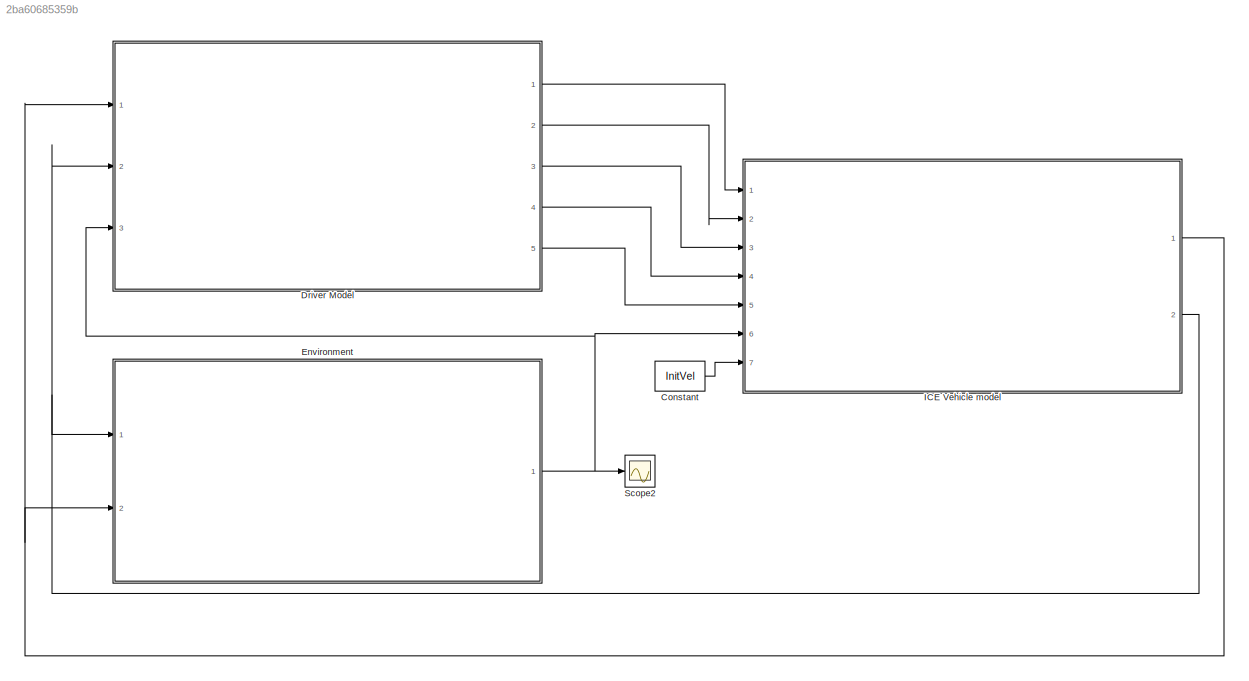
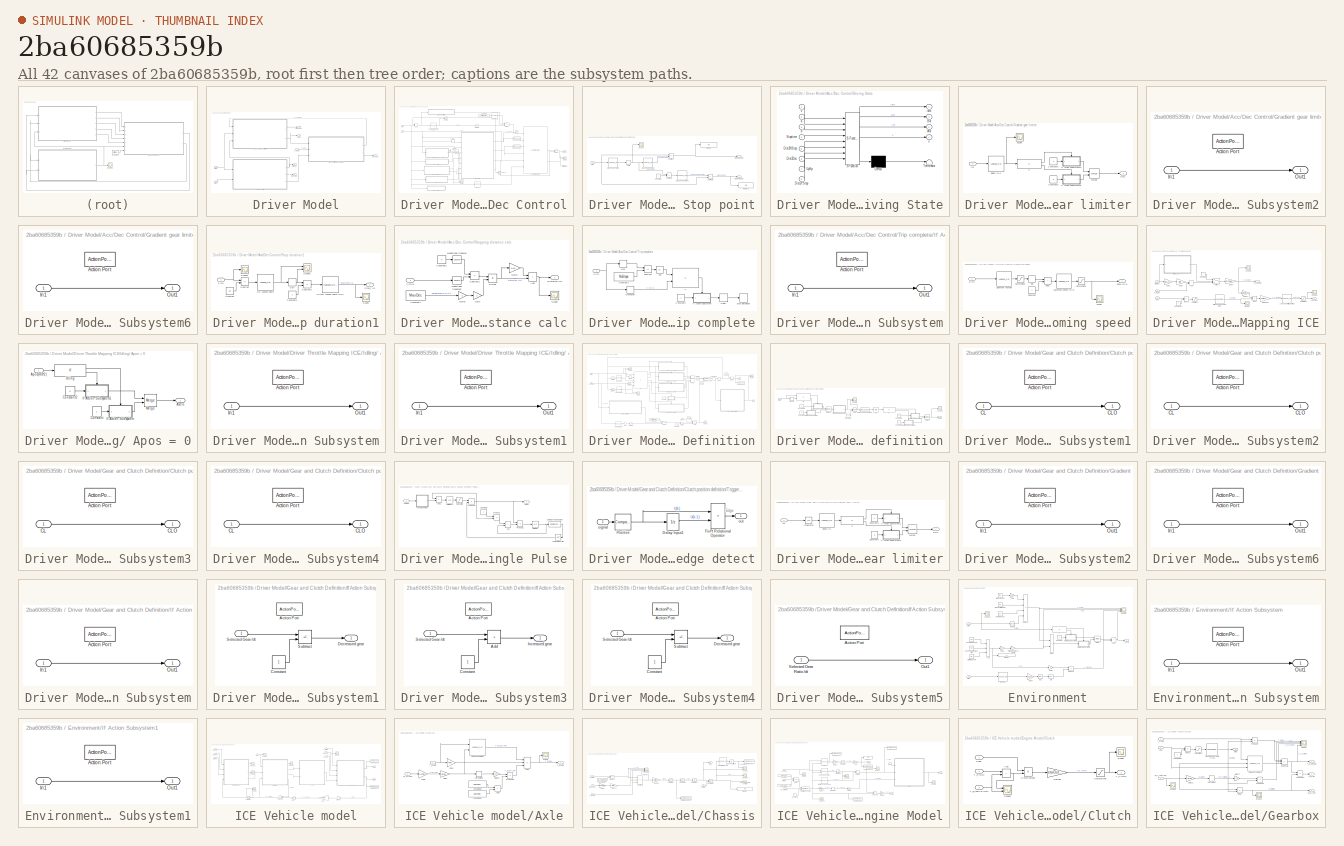
[diagram: thumbnail index - all 42 canvases of the model, root first then tree order]
MODEL slx_2ba60685359b
KIND model
CONFIG AbsTol = auto
CONFIG EnableMultiTasking = off
CONFIG FixedStep = dt
CONFIG MaxStep = auto
CONFIG MinStep = auto
CONFIG RelTol = 1e-3
CONFIG SampleTimeConstraint = Unconstrained
CONFIG SolverName = FixedStepAuto
CONFIG StartTime = 0.0
CONFIG StopTime = 2500
BLOCK [Constant] Constant
  Value = InitVel
BLOCK [SubSystem] Driver Model
  Ports = [3, 5]
  RequestExecContextInheritance = off
BLOCK [SubSystem] Driver Model/Acc//Dec Control
  Ports = [2, 3]
  RequestExecContextInheritance = off
BLOCK [Sum] Driver Model/Acc//Dec Control/Add
  IconShape = rectangular
  Ports = [2, 1]
BLOCK [Outport] Driver Model/Acc//Dec Control/Arate(0-1)
  Port = 3
BLOCK [Outport] Driver Model/Acc//Dec Control/Bpos (0-1)
  Port = 2
BLOCK [DataTypeConversion] Driver Model/Acc//Dec Control/Cast To Boolean
  OutDataTypeStr = boolean
  RndMeth = Floor
  SaturateOnIntegerOverflow = off
BLOCK [DataTypeConversion] Driver Model/Acc//Dec Control/Cast To Boolean1
  OutDataTypeStr = boolean
  RndMeth = Floor
  SaturateOnIntegerOverflow = off
BLOCK [Constant] Driver Model/Acc//Dec Control/Constant7
  Value = ceil(max(GearNo)*2/3)
BLOCK [Derivative] Driver Model/Acc//Dec Control/Derivative
BLOCK [Display] Driver Model/Acc//Dec Control/Display
  Decimation = 1
  Format = long
  Ports = [1]
BLOCK [SubSystem] Driver Model/Acc//Dec Control/Distance from Stop point
  Ports = [1, 2]
  RequestExecContextInheritance = off
BLOCK [Lookup_n-D] Driver Model/Acc//Dec Control/Distance from Stop point/1-D Lookup Table
  BreakpointsForDimension1 = Stoptimes(:,1)
  InputPortMap = u0
  InternalRulePriority = Speed
  NumberOfTableDimensions = 1
  Ports = [1, 1]
  RndMeth = Simplest
  Table = 1:length(Stoptimes)
BLOCK [Lookup_n-D] Driver Model/Acc//Dec Control/Distance from Stop point/1-D Lookup Table1
  BreakpointsForDimension1 = 1:length(Stoptimes)
  InputPortMap = u0
  InternalRulePriority = Speed
  NumberOfTableDimensions = 1
  Ports = [1, 1]
  RndMeth = Simplest
  Table = Stoptimes(:,1)
BLOCK [Lookup_n-D] Driver Model/Acc//Dec Control/Distance from Stop point/1-D Lookup Table2
  BreakpointsForDimension1 = 1:length(Stoptimes)
  InputPortMap = u0
  InternalRulePriority = Speed
  NumberOfTableDimensions = 1
  Ports = [1, 1]
  RndMeth = Simplest
  Table = Stoptimes(:,1)
BLOCK [Rounding] Driver Model/Acc//Dec Control/Distance from Stop point/Ceil1
  Operator = ceil
BLOCK [Constant] Driver Model/Acc//Dec Control/Distance from Stop point/Constant
BLOCK [Display] Driver Model/Acc//Dec Control/Distance from Stop point/Display
  Decimation = 1
  Format = long
  Ports = [1]
BLOCK [Display] Driver Model/Acc//Dec Control/Distance from Stop point/Display1
  Decimation = 1
  Format = long
  Ports = [1]
BLOCK [Outport] Driver Model/Acc//Dec Control/Distance from Stop point/Dist2NStop (m)
BLOCK [Outport] Driver Model/Acc//Dec Control/Distance from Stop point/Dist2PStop (m)
  Port = 2
BLOCK [Scope] Driver Model/Acc//Dec Control/Distance from Stop point/Scope
  Floating = off
  NumInputPorts = 1
  Ports = [1]
  ScopeSpecificationString = Simulink.scopes.TimeScopeBlockCfg('CurrentConfiguration', extmgr.ConfigurationSet(extmgr.Configuration('Core','General UI',true),extmgr.Configuration('Core','Source UI',true),extmgr.Configuration('Sources','WiredSimulink',true,'DataLoggingVariableName','ScopeData1'),extmgr.Configuration('Visuals','Time Domain',true,'SerializedDisplays',{struct('MinYLimReal','0.75','MaxYLimReal','3.25','YLabelReal'...<+1344ch>
BLOCK [Sum] Driver Model/Acc//Dec Control/Distance from Stop point/Subtract
  IconShape = rectangular
  Inputs = -+
  Ports = [2, 1]
BLOCK [Sum] Driver Model/Acc//Dec Control/Distance from Stop point/Subtract1
  IconShape = rectangular
  Inputs = +-
  Ports = [2, 1]
BLOCK [Sum] Driver Model/Acc//Dec Control/Distance from Stop point/Subtract2
  IconShape = rectangular
  Inputs = +-
  Ports = [2, 1]
BLOCK [Inport] Driver Model/Acc//Dec Control/Distance from Stop point/d(m)
BLOCK [SubSystem] Driver Model/Acc//Dec Control/Driving State
  ErrorFcn = Stateflow.Translate.translate
  PermitHierarchicalResolution = ExplicitOnly
  PortSchema = {"entries":[{"content":{"sides":[{"content":{"connectorIds":["In1","In2","In3","In6","In4","In5","In8","In7"]},"type":"ConnectorPlacement.EquallySpacedRectSide","uuid":"d08c6342-d75c-4cbe-aad4-154711b37fb2"},{"content":{"connectorIds":["Out1","Out2","Out3","Out4"],"side":"RIGHT"},"type":"ConnectorPlacement.EquallySpacedRectSide","uuid":"8a1951a0-5a37-479b-8286-6923b1e8a7ed"},{"content":{"connector...<+447ch>
  Ports = [8, 4]
  RequestExecContextInheritance = off
  SFBlockType = Chart
  TreatAsAtomicUnit = on
BLOCK [Demux] Driver Model/Acc//Dec Control/Driving State/ Demux 
  Outputs = 1
  Ports = [1, 1]
BLOCK [S-Function] Driver Model/Acc//Dec Control/Driving State/ SFunction 
  EnableBusSupport = on
  FunctionName = sf_sfun
  PortCounts = [8 5]
  Ports = [8, 5]
  SFcnIsStateOwnerBlock = off
  SFunctionDeploymentMode = off
  Tag = Stateflow S-Function 3
BLOCK [Terminator] Driver Model/Acc//Dec Control/Driving State/ Terminator 
BLOCK [Outport] Driver Model/Acc//Dec Control/Driving State/Aor
  Port = 3
BLOCK [Outport] Driver Model/Acc//Dec Control/Driving State/Bor
  Port = 2
BLOCK [Inport] Driver Model/Acc//Dec Control/Driving State/Dist2Dec
  Port = 6
BLOCK [Inport] Driver Model/Acc//Dec Control/Driving State/Dist2NStop
  Port = 5
BLOCK [Inport] Driver Model/Acc//Dec Control/Driving State/Dist2PStop
  Port = 8
BLOCK [Inport] Driver Model/Acc//Dec Control/Driving State/Stoptime
  Port = 4
BLOCK [Inport] Driver Model/Acc//Dec Control/Driving State/UpSp
  Port = 7
BLOCK [Inport] Driver Model/Acc//Dec Control/Driving State/a
  Port = 2
BLOCK [Inport] Driver Model/Acc//Dec Control/Driving State/d
  Port = 3
BLOCK [Outport] Driver Model/Acc//Dec Control/Driving State/idle
BLOCK [Inport] Driver Model/Acc//Dec Control/Driving State/v
BLOCK [Outport] Driver Model/Acc//Dec Control/Driving State/x
  Port = 4
BLOCK [Lookup_n-D] Driver Model/Acc//Dec Control/Generated Operating Cycle
  BreakpointsForDimension1 = Dist
  BreakpointsForDimension2 = G1Inprpm
  InputPortMap = u0
  InternalRulePriority = Speed
  InterpMethod = Linear Lagrange
  NumberOfTableDimensions = 1
  Ports = [1, 1]
  RndMeth = Simplest
  Table = MaxSpeedProfile
BLOCK [SubSystem] Driver Model/Acc//Dec Control/Gradient gear limiter
  Ports = [1, 1]
  RequestExecContextInheritance = off
BLOCK [Constant] Driver Model/Acc//Dec Control/Gradient gear limiter/Constant5
BLOCK [Constant] Driver Model/Acc//Dec Control/Gradient gear limiter/Constant6
  Value = 0
BLOCK [If] Driver Model/Acc//Dec Control/Gradient gear limiter/If
  IfExpression = u1 > 4.5
  Ports = [1, 2]
BLOCK [SubSystem] Driver Model/Acc//Dec Control/Gradient gear limiter/If Action Subsystem2
  Ports = [1, 1, 0, 0, 0, 0, 0, 1]
  RequestExecContextInheritance = off
  TreatAsAtomicUnit = on
BLOCK [ActionPort] Driver Model/Acc//Dec Control/Gradient gear limiter/If Action Subsystem2/Action Port
  ActionPortLabel = if(u1 > 4.5)
BLOCK [Inport] Driver Model/Acc//Dec Control/Gradient gear limiter/If Action Subsystem2/In1
BLOCK [Outport] Driver Model/Acc//Dec Control/Gradient gear limiter/If Action Subsystem2/Out1
BLOCK [SubSystem] Driver Model/Acc//Dec Control/Gradient gear limiter/If Action Subsystem6
  Ports = [1, 1, 0, 0, 0, 0, 0, 1]
  RequestExecContextInheritance = off
  TreatAsAtomicUnit = on
BLOCK [ActionPort] Driver Model/Acc//Dec Control/Gradient gear limiter/If Action Subsystem6/Action Port
  ActionPortLabel = else
BLOCK [Inport] Driver Model/Acc//Dec Control/Gradient gear limiter/If Action Subsystem6/In1
BLOCK [Outport] Driver Model/Acc//Dec Control/Gradient gear limiter/If Action Subsystem6/Out1
BLOCK [Inport] Driver Model/Acc//Dec Control/Gradient gear limiter/In1
BLOCK [Merge] Driver Model/Acc//Dec Control/Gradient gear limiter/Merge
  Ports = [2, 1]
BLOCK [Outport] Driver Model/Acc//Dec Control/Gradient gear limiter/Out1
BLOCK [Scope] Driver Model/Acc//Dec Control/Gradient gear limiter/Scope
  Floating = off
  NumInputPorts = 1
  Ports = [1]
  ScopeSpecificationString = Simulink.scopes.TimeScopeBlockCfg('CurrentConfiguration', extmgr.ConfigurationSet(extmgr.Configuration('Core','General UI',true),extmgr.Configuration('Core','Source UI',true),extmgr.Configuration('Sources','WiredSimulink',true,'DataLoggingVariableName','ScopeData8'),extmgr.Configuration('Visuals','Time Domain',true,'SerializedDisplays',{struct('MinYLimReal','-12.35116','MaxYLimReal','8.16048','YLa...<+1402ch>
BLOCK [Lookup_n-D] Driver Model/Acc//Dec Control/Gradient gear limiter/Slope (%)1
  BreakpointsForDimension1 = Dist
  InputPortMap = u0
  InternalRulePriority = Speed
  NumberOfTableDimensions = 1
  Ports = [1, 1]
  RndMeth = Simplest
  Table = IntpSlope
BLOCK [Reference] Driver Model/Acc//Dec Control/Longitudinal Driver  REF=autolibshared/Longitudinal Driver
  Ports = [6, 3]
  SourceBlock = autolibshared/Longitudinal Driver
  SourceProductBaseCode = PW,MT,UV,VE,VP
  SourceType = Longitudinal Driver
BLOCK [LookupNDDirect] Driver Model/Acc//Dec Control/MaxSpinG1
  NumberOfTableDimensions = 1
  Ports = [1, 1]
  Table = MaxSpinG
BLOCK [Product] Driver Model/Acc//Dec Control/Product
  Ports = [2, 1]
BLOCK [Saturate] Driver Model/Acc//Dec Control/Saturation
  LowerLimit = 0
  UpperLimit = inf
BLOCK [Scope] Driver Model/Acc//Dec Control/Scope
  Floating = off
  NumInputPorts = 2
  Ports = [2]
  ScopeSpecificationString = Simulink.scopes.TimeScopeBlockCfg('CurrentConfiguration', extmgr.ConfigurationSet(extmgr.Configuration('Core','General UI',true),extmgr.Configuration('Core','Source UI',true),extmgr.Configuration('Sources','WiredSimulink',true,'DataLoggingVariableName','ScopeData1'),extmgr.Configuration('Visuals','Time Domain',true,'SerializedDisplays',{struct('MinYLimReal','-0.125','MaxYLimReal','1.125','YLabelRe...<+1496ch>
BLOCK [Scope] Driver Model/Acc//Dec Control/Scope1
  Floating = off
  NumInputPorts = 1
  Ports = [1]
  ScopeSpecificationString = Simulink.scopes.TimeScopeBlockCfg('CurrentConfiguration', extmgr.ConfigurationSet(extmgr.Configuration('Core','General UI',true),extmgr.Configuration('Core','Source UI',true),extmgr.Configuration('Sources','WiredSimulink',true,'DataLoggingVariableName','ScopeData2'),extmgr.Configuration('Visuals','Time Domain',true,'SerializedDisplays',{struct('MinYLimReal','-0.07579','MaxYLimReal','15.44052','YLa...<+1375ch>
BLOCK [Scope] Driver Model/Acc//Dec Control/Scope2
  Floating = off
  NumInputPorts = 2
  Ports = [2]
  ScopeSpecificationString = Simulink.scopes.TimeScopeBlockCfg('CurrentConfiguration', extmgr.ConfigurationSet(extmgr.Configuration('Core','General UI',true),extmgr.Configuration('Core','Source UI',true),extmgr.Configuration('Sources','WiredSimulink',true,'DataLoggingVariableName','ScopeData6'),extmgr.Configuration('Visuals','Time Domain',true,'SerializedDisplays',{struct('MinYLimReal','-12961.62204','MaxYLimReal','116654.598...<+1513ch>
BLOCK [Scope] Driver Model/Acc//Dec Control/Scope5
  Floating = off
  NumInputPorts = 1
  Ports = [1]
  ScopeSpecificationString = Simulink.scopes.TimeScopeBlockCfg('CurrentConfiguration', extmgr.ConfigurationSet(extmgr.Configuration('Core','General UI',true),extmgr.Configuration('Core','Source UI',true),extmgr.Configuration('Sources','WiredSimulink',true,'DataLoggingVariableName','ScopeData2'),extmgr.Configuration('Visuals','Time Domain',true,'SerializedDisplays',{struct('MinYLimReal','-84.39299','MaxYLimReal','9.61981','YLa...<+1449ch>
BLOCK [Lookup_n-D] Driver Model/Acc//Dec Control/Slope (%)
  BreakpointsForDimension1 = Dist
  InputPortMap = u0
  InternalRulePriority = Speed
  NumberOfTableDimensions = 1
  Ports = [1, 1]
  RndMeth = Simplest
  Table = IntpSlope
BLOCK [SubSystem] Driver Model/Acc//Dec Control/Stop duration1
  Ports = [1, 1]
  RequestExecContextInheritance = off
BLOCK [Lookup_n-D] Driver Model/Acc//Dec Control/Stop duration1/1-D Lookup Table
  BreakpointsForDimension1 = Stoptimes(:,1)
  InputPortMap = u0
  InternalRulePriority = Speed
  NumberOfTableDimensions = 1
  Ports = [1, 1]
  RndMeth = Simplest
  Table = 1:length(Stoptimes)
BLOCK [Rounding] Driver Model/Acc//Dec Control/Stop duration1/Ceil
  Operator = ceil
BLOCK [Constant] Driver Model/Acc//Dec Control/Stop duration1/Constant
  Value = 10
BLOCK [Constant] Driver Model/Acc//Dec Control/Stop duration1/Constant2
BLOCK [LookupNDDirect] Driver Model/Acc//Dec Control/Stop duration1/Direct Lookup Table (n-D)
  NumberOfTableDimensions = 1
  Ports = [1, 1]
  Table = Stoptimes(:,2)
BLOCK [Scope] Driver Model/Acc//Dec Control/Stop duration1/Scope
  Floating = off
  NumInputPorts = 1
  Ports = [1]
  ScopeSpecificationString = Simulink.scopes.TimeScopeBlockCfg('CurrentConfiguration', extmgr.ConfigurationSet(extmgr.Configuration('Core','General UI',true),extmgr.Configuration('Core','Source UI',true),extmgr.Configuration('Sources','WiredSimulink',true,'DataLoggingVariableName','ScopeData1'),extmgr.Configuration('Visuals','Time Domain',true,'SerializedDisplays',{struct('MinYLimReal','48.00000','MaxYLimReal','68.00000','YLa...<+1431ch>
BLOCK [Scope] Driver Model/Acc//Dec Control/Stop duration1/Scope1
  Floating = off
  NumInputPorts = 2
  Ports = [2]
  ScopeSpecificationString = Simulink.scopes.TimeScopeBlockCfg('CurrentConfiguration', extmgr.ConfigurationSet(extmgr.Configuration('Core','General UI',true),extmgr.Configuration('Core','Source UI',true),extmgr.Configuration('Sources','WiredSimulink',true,'DataLoggingVariableName','ScopeData3'),extmgr.Configuration('Visuals','Time Domain',true,'SerializedDisplays',{struct('MinYLimReal','-0.3839','MaxYLimReal','6.70932','YLabe...<+1434ch>
BLOCK [Scope] Driver Model/Acc//Dec Control/Stop duration1/Scope2
  Floating = off
  NumInputPorts = 1
  Ports = [1]
  ScopeSpecificationString = Simulink.scopes.TimeScopeBlockCfg('CurrentConfiguration', extmgr.ConfigurationSet(extmgr.Configuration('Core','General UI',true),extmgr.Configuration('Core','Source UI',true),extmgr.Configuration('Sources','WiredSimulink',true,'DataLoggingVariableName','ScopeData4'),extmgr.Configuration('Visuals','Time Domain',true,'SerializedDisplays',{struct('MinYLimReal','-13527.45895','MaxYLimReal','121747.130...<+1453ch>
BLOCK [Outport] Driver Model/Acc//Dec Control/Stop duration1/Stop_t (s)
BLOCK [Sum] Driver Model/Acc//Dec Control/Stop duration1/Subtract
  IconShape = rectangular
  Inputs = +-
  Ports = [2, 1]
BLOCK [Sum] Driver Model/Acc//Dec Control/Stop duration1/Subtract1
  IconShape = rectangular
  Inputs = +-
  Ports = [2, 1]
BLOCK [Inport] Driver Model/Acc//Dec Control/Stop duration1/d (m)
BLOCK [SubSystem] Driver Model/Acc//Dec Control/Stopping distance calc
  Ports = [1, 1]
  RequestExecContextInheritance = off
BLOCK [Sum] Driver Model/Acc//Dec Control/Stopping distance calc/Add
  IconShape = rectangular
  Ports = [2, 1]
BLOCK [Constant] Driver Model/Acc//Dec Control/Stopping distance calc/Constant2
  Value = 0
BLOCK [Constant] Driver Model/Acc//Dec Control/Stopping distance calc/Constant4
  Value = MaxDec
BLOCK [Outport] Driver Model/Acc//Dec Control/Stopping distance calc/Dist2Dec (m)
BLOCK [Product] Driver Model/Acc//Dec Control/Stopping distance calc/Divide
  Inputs = */
  Ports = [2, 1]
BLOCK [Gain] Driver Model/Acc//Dec Control/Stopping distance calc/Gain
  Gain = 2
BLOCK [Gain] Driver Model/Acc//Dec Control/Stopping distance calc/Gain1
  Gain = 0.01
BLOCK [Gain] Driver Model/Acc//Dec Control/Stopping distance calc/Gain2
  Gain = -1
BLOCK [Math] Driver Model/Acc//Dec Control/Stopping distance calc/Magnitude Squared
  Operator = square
  Ports = [1, 1]
BLOCK [Math] Driver Model/Acc//Dec Control/Stopping distance calc/Magnitude Squared1
  Operator = square
  Ports = [1, 1]
BLOCK [Scope] Driver Model/Acc//Dec Control/Stopping distance calc/Scope
  Floating = off
  NumInputPorts = 1
  Ports = [1]
  ScopeSpecificationString = Simulink.scopes.TimeScopeBlockCfg('CurrentConfiguration', extmgr.ConfigurationSet(extmgr.Configuration('Core','General UI',true),extmgr.Configuration('Core','Source UI',true),extmgr.Configuration('Sources','WiredSimulink',true,'DataLoggingVariableName','ScopeData5'),extmgr.Configuration('Visuals','Time Domain',true,'SerializedDisplays',{struct('MinYLimReal','-36.41776','MaxYLimReal','327.75982','Y...<+1424ch>
BLOCK [Sum] Driver Model/Acc//Dec Control/Stopping distance calc/Subtract1
  IconShape = rectangular
  Inputs = +-
  Ports = [2, 1]
BLOCK [Inport] Driver Model/Acc//Dec Control/Stopping distance calc/v (m//s)
BLOCK [Switch] Driver Model/Acc//Dec Control/Switch1
  Criteria = u2 > Threshold
  InputSameDT = off
  SaturateOnIntegerOverflow = off
BLOCK [SubSystem] Driver Model/Acc//Dec Control/Trip complete
  Ports = [1]
  RequestExecContextInheritance = off
BLOCK [Abs] Driver Model/Acc//Dec Control/Trip complete/Abs
  SaturateOnIntegerOverflow = off
BLOCK [Constant] Driver Model/Acc//Dec Control/Trip complete/Constant1
  Value = NoSteps
BLOCK [Constant] Driver Model/Acc//Dec Control/Trip complete/Constant2
BLOCK [Delay] Driver Model/Acc//Dec Control/Trip complete/Delay
  DelayLength = 1
  InputPortMap = u0
  Ports = [1, 1]
BLOCK [Derivative] Driver Model/Acc//Dec Control/Trip complete/Derivative
BLOCK [If] Driver Model/Acc//Dec Control/Trip complete/If
  IfExpression = u1 <= 200 & u2 ==0
  NumInputs = 2
  Ports = [2, 1]
  ShowElse = off
BLOCK [SubSystem] Driver Model/Acc//Dec Control/Trip complete/If Action Subsystem
  Ports = [1, 1, 0, 0, 0, 0, 0, 1]
  RequestExecContextInheritance = off
  TreatAsAtomicUnit = on
BLOCK [ActionPort] Driver Model/Acc//Dec Control/Trip complete/If Action Subsystem/Action Port
  ActionPortLabel = if(u1 <= 200 & u2 ==0)
BLOCK [Inport] Driver Model/Acc//Dec Control/Trip complete/If Action Subsystem/In1
BLOCK [Outport] Driver Model/Acc//Dec Control/Trip complete/If Action Subsystem/Out1
BLOCK [MinMax] Driver Model/Acc//Dec Control/Trip complete/Max
  Function = max
  Ports = [1, 1]
BLOCK [Stop] Driver Model/Acc//Dec Control/Trip complete/Stop Simulation
BLOCK [Sum] Driver Model/Acc//Dec Control/Trip complete/Subtract
  IconShape = rectangular
  Inputs = +-
  Ports = [2, 1]
BLOCK [Inport] Driver Model/Acc//Dec Control/Trip complete/d (m)
BLOCK [SubSystem] Driver Model/Acc//Dec Control/Upcoming speed
  Ports = [1, 1]
  RequestExecContextInheritance = off
BLOCK [Sum] Driver Model/Acc//Dec Control/Upcoming speed/Add3
  IconShape = rectangular
  Ports = [2, 1]
BLOCK [Rounding] Driver Model/Acc//Dec Control/Upcoming speed/Ceil
  Operator = ceil
BLOCK [Constant] Driver Model/Acc//Dec Control/Upcoming speed/Constant
BLOCK [Saturate] Driver Model/Acc//Dec Control/Upcoming speed/Saturation1
  LowerLimit = 0
  UpperLimit = inf
BLOCK [Saturate] Driver Model/Acc//Dec Control/Upcoming speed/Saturation2
  LowerLimit = 0
  UpperLimit = inf
BLOCK [Scope] Driver Model/Acc//Dec Control/Upcoming speed/Scope
  Floating = off
  NumInputPorts = 1
  Ports = [1]
  ScopeSpecificationString = Simulink.scopes.TimeScopeBlockCfg('CurrentConfiguration', extmgr.ConfigurationSet(extmgr.Configuration('Core','General UI',true),extmgr.Configuration('Core','Source UI',true),extmgr.Configuration('Sources','WiredSimulink',true,'DataLoggingVariableName','ScopeData7'),extmgr.Configuration('Visuals','Time Domain',true,'SerializedDisplays',{struct('MinYLimReal','-2.95139','MaxYLimReal','26.5625','YLab...<+1397ch>
BLOCK [Lookup_n-D] Driver Model/Acc//Dec Control/Upcoming speed/Segment number
  BreakpointsForDimension1 = CovDist
  BreakpointsForDimension2 = G1Inprpm
  InputPortMap = u0
  InternalRulePriority = Speed
  InterpMethod = Linear Lagrange
  NumberOfTableDimensions = 1
  Ports = [1, 1]
  RndMeth = Simplest
  Table = SegNo
BLOCK [Outport] Driver Model/Acc//Dec Control/Upcoming speed/UpSp (m//s)
BLOCK [Inport] Driver Model/Acc//Dec Control/Upcoming speed/d (m)
BLOCK [Lookup_n-D] Driver Model/Acc//Dec Control/Upcoming speed/upcoming speed (m//s)
  BreakpointsForDimension1 = SegNo
  BreakpointsForDimension2 = G1Inprpm
  InputPortMap = u0
  InternalRulePriority = Speed
  InterpMethod = Linear Lagrange
  NumberOfTableDimensions = 1
  Ports = [1, 1]
  RndMeth = Simplest
  Table = SegSPLatinmps
BLOCK [Inport] Driver Model/Acc//Dec Control/d (m)
  Port = 2
BLOCK [Outport] Driver Model/Acc//Dec Control/idle (0-1)
BLOCK [Inport] Driver Model/Acc//Dec Control/v (m//s)
BLOCK [Outport] Driver Model/Apos(0-1)
  Port = 2
BLOCK [Outport] Driver Model/Bpos (0-1)
BLOCK [Outport] Driver Model/Cpos (1-0)
  Port = 3
BLOCK [SubSystem] Driver Model/Driver Throttle Mapping ICE
  Ports = [3, 2]
  RequestExecContextInheritance = off
BLOCK [Sum] Driver Model/Driver Throttle Mapping ICE/Add
  IconShape = rectangular
  Ports = [2, 1]
BLOCK [Outport] Driver Model/Driver Throttle Mapping ICE/Apos (0-1)
  Port = 2
BLOCK [Inport] Driver Model/Driver Throttle Mapping ICE/Arate(0-1)
  Port = 3
BLOCK [Constant] Driver Model/Driver Throttle Mapping ICE/Constant1
  Value = 0
BLOCK [Constant] Driver Model/Driver Throttle Mapping ICE/Constant20
BLOCK [LookupNDDirect] Driver Model/Driver Throttle Mapping ICE/Direct Lookup Table (n-D)2
  NumberOfTableDimensions = 1
  Ports = [1, 1]
  Table = GRa
BLOCK [Product] Driver Model/Driver Throttle Mapping ICE/Divide
  Inputs = */
  Ports = [2, 1]
BLOCK [Inport] Driver Model/Driver Throttle Mapping ICE/F_res (N)
  Port = 2
BLOCK [Inport] Driver Model/Driver Throttle Mapping ICE/GNo
BLOCK [Gain] Driver Model/Driver Throttle Mapping ICE/Gain1
  Gain = MaxAcc
BLOCK [Gain] Driver Model/Driver Throttle Mapping ICE/Gain10
  Gain = 1/FDR
BLOCK [Gain] Driver Model/Driver Throttle Mapping ICE/Gain4
  Gain = Mtot
BLOCK [Gain] Driver Model/Driver Throttle Mapping ICE/Gain9
  Gain = DynRolRad
BLOCK [SubSystem] Driver Model/Driver Throttle Mapping ICE/Idling// Apos = 0
  Ports = [1, 1]
  RequestExecContextInheritance = off
BLOCK [Inport] Driver Model/Driver Throttle Mapping ICE/Idling// Apos = 0/Apos(m//s^2)
BLOCK [Outport] Driver Model/Driver Throttle Mapping ICE/Idling// Apos = 0/Azero
BLOCK [Constant] Driver Model/Driver Throttle Mapping ICE/Idling// Apos = 0/Constant
BLOCK [Constant] Driver Model/Driver Throttle Mapping ICE/Idling// Apos = 0/Constant2
  Value = 0
BLOCK [If] Driver Model/Driver Throttle Mapping ICE/Idling// Apos = 0/Idling
  IfExpression = u1 == 0
  Ports = [1, 2]
BLOCK [SubSystem] Driver Model/Driver Throttle Mapping ICE/Idling// Apos = 0/If Action Subsystem
  Ports = [1, 1, 0, 0, 0, 0, 0, 1]
  RequestExecContextInheritance = off
  TreatAsAtomicUnit = on
BLOCK [ActionPort] Driver Model/Driver Throttle Mapping ICE/Idling// Apos = 0/If Action Subsystem/Action Port
  ActionPortLabel = if(u1 == 0)
BLOCK [Inport] Driver Model/Driver Throttle Mapping ICE/Idling// Apos = 0/If Action Subsystem/In1
BLOCK [Outport] Driver Model/Driver Throttle Mapping ICE/Idling// Apos = 0/If Action Subsystem/Out1
BLOCK [SubSystem] Driver Model/Driver Throttle Mapping ICE/Idling// Apos = 0/If Action Subsystem1
  Ports = [1, 1, 0, 0, 0, 0, 0, 1]
  RequestExecContextInheritance = off
  TreatAsAtomicUnit = on
BLOCK [ActionPort] Driver Model/Driver Throttle Mapping ICE/Idling// Apos = 0/If Action Subsystem1/Action Port
  ActionPortLabel = else
BLOCK [Inport] Driver Model/Driver Throttle Mapping ICE/Idling// Apos = 0/If Action Subsystem1/In1
BLOCK [Outport] Driver Model/Driver Throttle Mapping ICE/Idling// Apos = 0/If Action Subsystem1/Out1
BLOCK [Merge] Driver Model/Driver Throttle Mapping ICE/Idling// Apos = 0/Merge
  Ports = [2, 1]
BLOCK [Sum] Driver Model/Driver Throttle Mapping ICE/Index1
  IconShape = rectangular
  Inputs = +-
  Ports = [2, 1]
BLOCK [Lookup_n-D] Driver Model/Driver Throttle Mapping ICE/Lookup Throttle position
  BreakpointsForDimension1 = MaxTorValThrot
  InputPortMap = u0
  InternalRulePriority = Speed
  NumberOfTableDimensions = 1
  Ports = [1, 1]
  RndMeth = Simplest
  Table = ThrotPos
BLOCK [Saturate] Driver Model/Driver Throttle Mapping ICE/Saturation2
  LowerLimit = 0
  UpperLimit = 1
BLOCK [Saturate] Driver Model/Driver Throttle Mapping ICE/Saturation7
  LowerLimit = 0
  UpperLimit = inf
BLOCK [Scope] Driver Model/Driver Throttle Mapping ICE/Scope
  Floating = off
  NumInputPorts = 1
  Ports = [1]
  ScopeSpecificationString = Simulink.scopes.TimeScopeBlockCfg('CurrentConfiguration', extmgr.ConfigurationSet(extmgr.Configuration('Core','General UI',true),extmgr.Configuration('Core','Source UI',true),extmgr.Configuration('Sources','WiredSimulink',true,'DataLoggingVariableName','ScopeData6'),extmgr.Configuration('Visuals','Time Domain',true,'SerializedDisplays',{struct('MinYLimReal','0.8275','MaxYLimReal','7.3525','YLabelR...<+1386ch>
BLOCK [Scope] Driver Model/Driver Throttle Mapping ICE/Scope1
  Floating = off
  NumInputPorts = 1
  Ports = [1]
  ScopeSpecificationString = Simulink.scopes.TimeScopeBlockCfg('CurrentConfiguration', extmgr.ConfigurationSet(extmgr.Configuration('Core','General UI',true),extmgr.Configuration('Core','Source UI',true),extmgr.Configuration('Sources','WiredSimulink',true,'DataLoggingVariableName','ScopeData5'),extmgr.Configuration('Visuals','Time Domain',true,'SerializedDisplays',{struct('MinYLimReal','-0.02647','MaxYLimReal','1.03368','YLab...<+1416ch>
BLOCK [Scope] Driver Model/Driver Throttle Mapping ICE/Scope3
  Floating = off
  NumInputPorts = 1
  Ports = [1]
  ScopeSpecificationString = Simulink.scopes.TimeScopeBlockCfg('CurrentConfiguration', extmgr.ConfigurationSet(extmgr.Configuration('Core','General UI',true),extmgr.Configuration('Core','Source UI',true),extmgr.Configuration('Sources','WiredSimulink',true,'DataLoggingVariableName','ScopeData5'),extmgr.Configuration('Visuals','Time Domain',true,'SerializedDisplays',{struct('MinYLimReal','-19709.25663','MaxYLimReal','33380.4801...<+1453ch>
BLOCK [Switch] Driver Model/Driver Throttle Mapping ICE/Switch
  Criteria = u2 > Threshold
  InputSameDT = off
  SaturateOnIntegerOverflow = off
BLOCK [Outport] Driver Model/Driver Throttle Mapping ICE/T_w_req (Nm)
BLOCK [Gain] Driver Model/Driver Throttle Mapping ICE/etaClutch2
  Gain = 1/etaClutch
BLOCK [Inport] Driver Model/F_res (N)
  Port = 3
BLOCK [Outport] Driver Model/GNo
  Port = 4
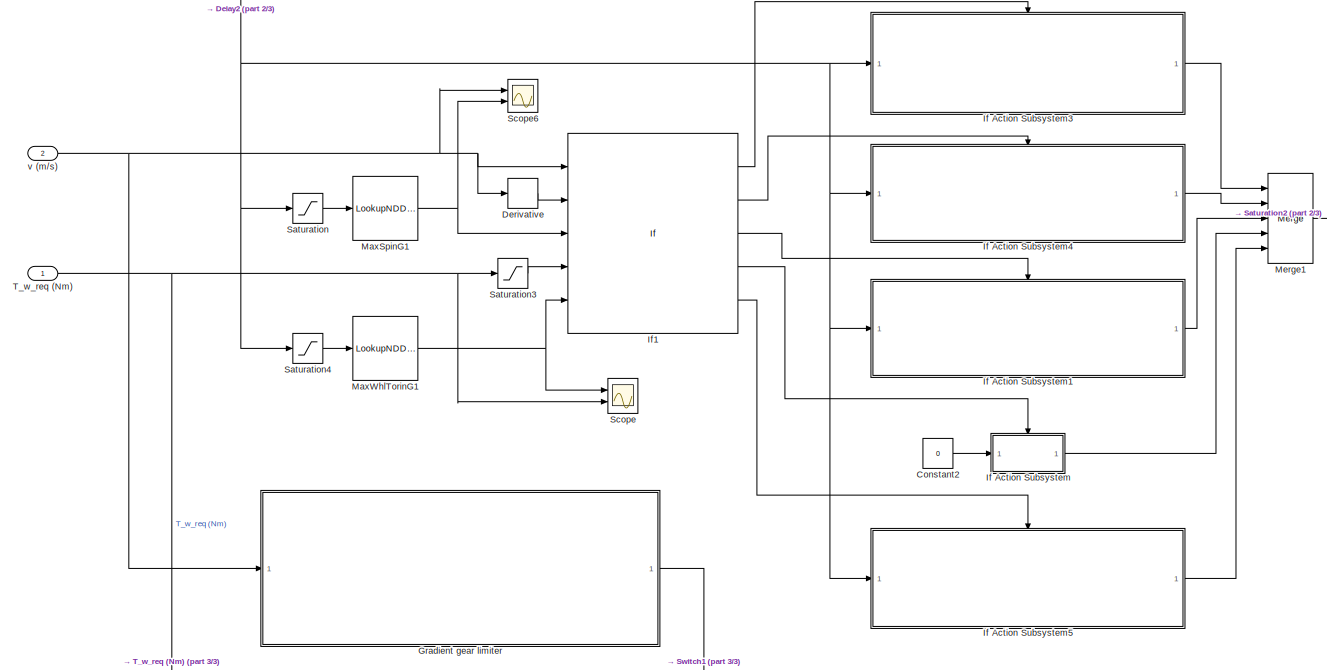
[diagram: Driver Model/Gear and Clutch Definition - part 1/3, middle left region]
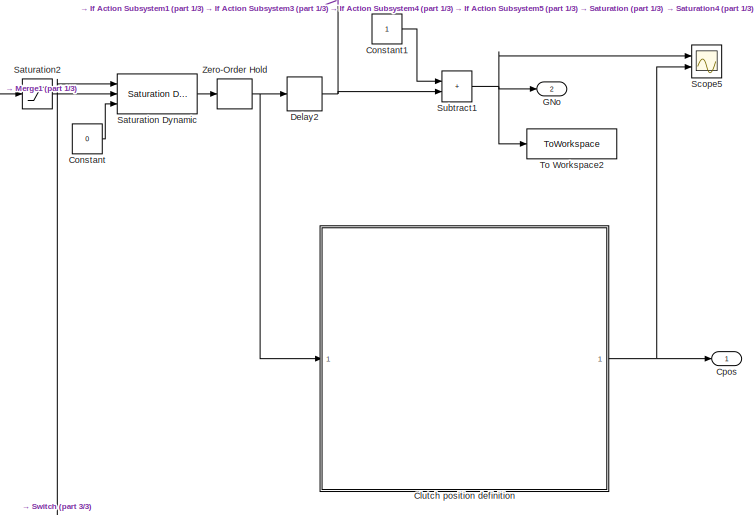
[diagram: Driver Model/Gear and Clutch Definition - part 2/3, middle right region]
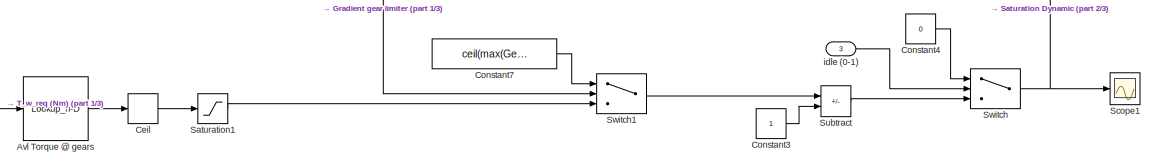
[diagram: Driver Model/Gear and Clutch Definition - part 3/3, bottom center region]
BLOCK [SubSystem] Driver Model/Gear and Clutch Definition
  Ports = [3, 2]
  RequestExecContextInheritance = off
BLOCK [Lookup_n-D] Driver Model/Gear and Clutch Definition/Avl Torque @ gears
  BreakpointsForDimension1 = flip(MaxWhlTorinG)
  InputPortMap = u0
  InternalRulePriority = Speed
  NumberOfTableDimensions = 1
  Ports = [1, 1]
  RndMeth = Simplest
  Table = flip(GNo)
BLOCK [Rounding] Driver Model/Gear and Clutch Definition/Ceil
  Operator = ceil
BLOCK [SubSystem] Driver Model/Gear and Clutch Definition/Clutch position definition
  Ports = [1, 1]
  RequestExecContextInheritance = off
BLOCK [Constant] Driver Model/Gear and Clutch Definition/Clutch position definition/Constant
BLOCK [Constant] Driver Model/Gear and Clutch Definition/Clutch position definition/Constant1
  Value = 0
BLOCK [Constant] Driver Model/Gear and Clutch Definition/Clutch position definition/Constant2
  Value = 0
BLOCK [Constant] Driver Model/Gear and Clutch Definition/Clutch position definition/Constant3
BLOCK [Constant] Driver Model/Gear and Clutch Definition/Clutch position definition/Constant4
BLOCK [Outport] Driver Model/Gear and Clutch Definition/Clutch position definition/Cpos
BLOCK [DataTypeConversion] Driver Model/Gear and Clutch Definition/Clutch position definition/Data Type Conversion
  OutDataTypeStr = double
  RndMeth = Floor
  SaturateOnIntegerOverflow = off
BLOCK [Inport] Driver Model/Gear and Clutch Definition/Clutch position definition/GNo
BLOCK [InitialCondition] Driver Model/Gear and Clutch Definition/Clutch position definition/IC
  Value = 0
BLOCK [If] Driver Model/Gear and Clutch Definition/Clutch position definition/If
  ElseIfExpressions = u1 == 1
  IfExpression = u1 == 0
  Ports = [1, 2]
  ShowElse = off
BLOCK [SubSystem] Driver Model/Gear and Clutch Definition/Clutch position definition/If Action Subsystem1
  Ports = [1, 1, 0, 0, 0, 0, 0, 1]
  RequestExecContextInheritance = off
  TreatAsAtomicUnit = on
BLOCK [ActionPort] Driver Model/Gear and Clutch Definition/Clutch position definition/If Action Subsystem1/Action Port
  ActionPortLabel = if(u1 == 0)
BLOCK [Inport] Driver Model/Gear and Clutch Definition/Clutch position definition/If Action Subsystem1/CL
BLOCK [Outport] Driver Model/Gear and Clutch Definition/Clutch position definition/If Action Subsystem1/CLO
BLOCK [SubSystem] Driver Model/Gear and Clutch Definition/Clutch position definition/If Action Subsystem2
  Ports = [1, 1, 0, 0, 0, 0, 0, 1]
  RequestExecContextInheritance = off
  TreatAsAtomicUnit = on
BLOCK [ActionPort] Driver Model/Gear and Clutch Definition/Clutch position definition/If Action Subsystem2/Action Port
  ActionPortLabel = elseif(u1 == 1)
BLOCK [Inport] Driver Model/Gear and Clutch Definition/Clutch position definition/If Action Subsystem2/CL
BLOCK [Outport] Driver Model/Gear and Clutch Definition/Clutch position definition/If Action Subsystem2/CLO
BLOCK [SubSystem] Driver Model/Gear and Clutch Definition/Clutch position definition/If Action Subsystem3
  Ports = [1, 1, 0, 0, 0, 0, 0, 1]
  RequestExecContextInheritance = off
  TreatAsAtomicUnit = on
BLOCK [ActionPort] Driver Model/Gear and Clutch Definition/Clutch position definition/If Action Subsystem3/Action Port
  ActionPortLabel = if(u1 == u2)
BLOCK [Inport] Driver Model/Gear and Clutch Definition/Clutch position definition/If Action Subsystem3/CL
BLOCK [Outport] Driver Model/Gear and Clutch Definition/Clutch position definition/If Action Subsystem3/CLO
BLOCK [SubSystem] Driver Model/Gear and Clutch Definition/Clutch position definition/If Action Subsystem4
  Ports = [1, 1, 0, 0, 0, 0, 0, 1]
  RequestExecContextInheritance = off
  TreatAsAtomicUnit = on
BLOCK [ActionPort] Driver Model/Gear and Clutch Definition/Clutch position definition/If Action Subsystem4/Action Port
  ActionPortLabel = else
BLOCK [Inport] Driver Model/Gear and Clutch Definition/Clutch position definition/If Action Subsystem4/CL
BLOCK [Outport] Driver Model/Gear and Clutch Definition/Clutch position definition/If Action Subsystem4/CLO
BLOCK [If] Driver Model/Gear and Clutch Definition/Clutch position definition/If1
  IfExpression = u1 == u2
  NumInputs = 2
  Ports = [2, 2]
BLOCK [Memory] Driver Model/Gear and Clutch Definition/Clutch position definition/Memory
BLOCK [Merge] Driver Model/Gear and Clutch Definition/Clutch position definition/Merge
  Ports = [2, 1]
BLOCK [Merge] Driver Model/Gear and Clutch Definition/Clutch position definition/Merge2
  Ports = [2, 1]
BLOCK [Scope] Driver Model/Gear and Clutch Definition/Clutch position definition/Scope
  Floating = off
  NumInputPorts = 2
  Ports = [2]
  ScopeSpecificationString = Simulink.scopes.TimeScopeBlockCfg('CurrentConfiguration', extmgr.ConfigurationSet(extmgr.Configuration('Core','General UI',true),extmgr.Configuration('Core','Source UI',true),extmgr.Configuration('Sources','WiredSimulink',true,'DataLoggingVariableName','ScopeData4'),extmgr.Configuration('Visuals','Time Domain',true,'SerializedDisplays',{struct('MinYLimReal','-0.125','MaxYLimReal','1.125','YLabelRe...<+1448ch>
BLOCK [Scope] Driver Model/Gear and Clutch Definition/Clutch position definition/Scope1
  Floating = off
  NumInputPorts = 2
  Ports = [2]
  ScopeSpecificationString = Simulink.scopes.TimeScopeBlockCfg('CurrentConfiguration', extmgr.ConfigurationSet(extmgr.Configuration('Core','General UI',true),extmgr.Configuration('Core','Source UI',true),extmgr.Configuration('Sources','WiredSimulink',true,'DataLoggingVariableName','ScopeData2'),extmgr.Configuration('Visuals','Time Domain',true,'SerializedDisplays',{struct('MinYLimReal','-0.125','MaxYLimReal','1.125','YLabelRe...<+1478ch>
BLOCK [SubSystem] Driver Model/Gear and Clutch Definition/Clutch position definition/Triggered Single Pulse
  Ports = [1, 1]
  RequestExecContextInheritance = off
  TreatAsAtomicUnit = on
BLOCK [SubSystem] Driver Model/Gear and Clutch Definition/Clutch position definition/Triggered Single Pulse/+ve edge detect
  Ports = [1, 1]
  RequestExecContextInheritance = off
BLOCK [UnitDelay] Driver Model/Gear and Clutch Definition/Clutch position definition/Triggered Single Pulse/+ve edge detect/Delay Input1
  Description = Store in Global RAM
  DisableCoverage = on
  HasFrameUpgradeWarning = on
  SampleTime = -1
BLOCK [RelationalOperator] Driver Model/Gear and Clutch Definition/Clutch position definition/Triggered Single Pulse/+ve edge detect/FixPt Relational Operator
  InputSameDT = off
  Operator = >
  OutDataTypeStr = fixdt(0, 8)
  Ports = [2, 1]
  ZeroCross = off
BLOCK [Reference] Driver Model/Gear and Clutch Definition/Clutch position definition/Triggered Single Pulse/+ve edge detect/Positive  REF=simulink/Logic and Bit
Operations/Compare
To Zero
  Ports = [1, 1]
  SourceBlock = simulink/Logic and Bit\nOperations/Compare\nTo Zero
  SourceProductBaseCode = SL
  SourceType = Compare To Zero
BLOCK [Outport] Driver Model/Gear and Clutch Definition/Clutch position definition/Triggered Single Pulse/+ve edge detect/out
BLOCK [Inport] Driver Model/Gear and Clutch Definition/Clutch position definition/Triggered Single Pulse/+ve edge detect/signal
BLOCK [Sum] Driver Model/Gear and Clutch Definition/Clutch position definition/Triggered Single Pulse/Add
  IconShape = rectangular
  Ports = [2, 1]
BLOCK [Sum] Driver Model/Gear and Clutch Definition/Clutch position definition/Triggered Single Pulse/Add1
  IconShape = rectangular
  Ports = [2, 1]
BLOCK [Reference] Driver Model/Gear and Clutch Definition/Clutch position definition/Triggered Single Pulse/Compare To Constant  REF=simulink/Logic and Bit
Operations/Compare
To Constant
  Ports = [1, 1]
  SourceBlock = simulink/Logic and Bit\nOperations/Compare\nTo Constant
  SourceProductBaseCode = SL
  SourceType = Compare To Constant
BLOCK [Constant] Driver Model/Gear and Clutch Definition/Clutch position definition/Triggered Single Pulse/Constant2
BLOCK [Logic] Driver Model/Gear and Clutch Definition/Clutch position definition/Triggered Single Pulse/Logical Operator
  AllPortsSameDT = off
  Operator = NOT
  OutDataTypeStr = boolean
  Ports = [1, 1]
BLOCK [Product] Driver Model/Gear and Clutch Definition/Clutch position definition/Triggered Single Pulse/Product
  Ports = [2, 1]
  RndMeth = Zero
BLOCK [Product] Driver Model/Gear and Clutch Definition/Clutch position definition/Triggered Single Pulse/Product1
  Ports = [2, 1]
  RndMeth = Zero
BLOCK [Product] Driver Model/Gear and Clutch Definition/Clutch position definition/Triggered Single Pulse/Product3
  Ports = [2, 1]
  RndMeth = Zero
BLOCK [Outport] Driver Model/Gear and Clutch Definition/Clutch position definition/Triggered Single Pulse/Pulse
BLOCK [Saturate] Driver Model/Gear and Clutch Definition/Clutch position definition/Triggered Single Pulse/Saturation
  LowerLimit = 0
  UpperLimit = 1
BLOCK [Inport] Driver Model/Gear and Clutch Definition/Clutch position definition/Triggered Single Pulse/Trigger
BLOCK [UnitDelay] Driver Model/Gear and Clutch Definition/Clutch position definition/Triggered Single Pulse/Unit Delay
  HasFrameUpgradeWarning = on
  SampleTime = -1
BLOCK [UnitDelay] Driver Model/Gear and Clutch Definition/Clutch position definition/Triggered Single Pulse/Unit Delay1
  HasFrameUpgradeWarning = on
  SampleTime = -1
BLOCK [Logic] Driver Model/Gear and Clutch Definition/Clutch position definition/XOR
  AllPortsSameDT = off
  IconShape = distinctive
  Operator = XOR
  OutDataTypeStr = boolean
  Ports = [2, 1]
BLOCK [Constant] Driver Model/Gear and Clutch Definition/Constant
  Value = 0
BLOCK [Constant] Driver Model/Gear and Clutch Definition/Constant1
BLOCK [Constant] Driver Model/Gear and Clutch Definition/Constant2
  Value = 0
BLOCK [Constant] Driver Model/Gear and Clutch Definition/Constant3
BLOCK [Constant] Driver Model/Gear and Clutch Definition/Constant4
  Value = 0
BLOCK [Constant] Driver Model/Gear and Clutch Definition/Constant7
  Value = ceil(max(GearNo)*2/3)
BLOCK [Outport] Driver Model/Gear and Clutch Definition/Cpos
BLOCK [Delay] Driver Model/Gear and Clutch Definition/Delay2
  DelayLength = 1
  InputPortMap = u0
  Ports = [1, 1]
BLOCK [Derivative] Driver Model/Gear and Clutch Definition/Derivative
BLOCK [Outport] Driver Model/Gear and Clutch Definition/GNo
  Port = 2
BLOCK [SubSystem] Driver Model/Gear and Clutch Definition/Gradient gear limiter
  Ports = [1, 1]
  RequestExecContextInheritance = off
BLOCK [Constant] Driver Model/Gear and Clutch Definition/Gradient gear limiter/Constant5
BLOCK [Constant] Driver Model/Gear and Clutch Definition/Gradient gear limiter/Constant6
  Value = 0
BLOCK [If] Driver Model/Gear and Clutch Definition/Gradient gear limiter/If
  IfExpression = u1 > 4.5
  Ports = [1, 2]
BLOCK [SubSystem] Driver Model/Gear and Clutch Definition/Gradient gear limiter/If Action Subsystem2
  Ports = [1, 1, 0, 0, 0, 0, 0, 1]
  RequestExecContextInheritance = off
  TreatAsAtomicUnit = on
BLOCK [ActionPort] Driver Model/Gear and Clutch Definition/Gradient gear limiter/If Action Subsystem2/Action Port
  ActionPortLabel = if(u1 > 4.5)
BLOCK [Inport] Driver Model/Gear and Clutch Definition/Gradient gear limiter/If Action Subsystem2/In1
BLOCK [Outport] Driver Model/Gear and Clutch Definition/Gradient gear limiter/If Action Subsystem2/Out1
BLOCK [SubSystem] Driver Model/Gear and Clutch Definition/Gradient gear limiter/If Action Subsystem6
  Ports = [1, 1, 0, 0, 0, 0, 0, 1]
  RequestExecContextInheritance = off
  TreatAsAtomicUnit = on
BLOCK [ActionPort] Driver Model/Gear and Clutch Definition/Gradient gear limiter/If Action Subsystem6/Action Port
  ActionPortLabel = else
BLOCK [Inport] Driver Model/Gear and Clutch Definition/Gradient gear limiter/If Action Subsystem6/In1
BLOCK [Outport] Driver Model/Gear and Clutch Definition/Gradient gear limiter/If Action Subsystem6/Out1
BLOCK [Inport] Driver Model/Gear and Clutch Definition/Gradient gear limiter/In1
BLOCK [Integrator] Driver Model/Gear and Clutch Definition/Gradient gear limiter/Integrator
  Ports = [1, 1]
BLOCK [Merge] Driver Model/Gear and Clutch Definition/Gradient gear limiter/Merge
  Ports = [2, 1]
BLOCK [Outport] Driver Model/Gear and Clutch Definition/Gradient gear limiter/Out1
BLOCK [Lookup_n-D] Driver Model/Gear and Clutch Definition/Gradient gear limiter/Slope (%)
  BreakpointsForDimension1 = Dist
  InputPortMap = u0
  InternalRulePriority = Speed
  NumberOfTableDimensions = 1
  Ports = [1, 1]
  RndMeth = Simplest
  Table = IntpSlope
BLOCK [SubSystem] Driver Model/Gear and Clutch Definition/If Action Subsystem
  Ports = [1, 1, 0, 0, 0, 0, 0, 1]
  RequestExecContextInheritance = off
  TreatAsAtomicUnit = on
BLOCK [ActionPort] Driver Model/Gear and Clutch Definition/If Action Subsystem/Action Port
  ActionPortLabel = elseif( u1 == 0)
BLOCK [Inport] Driver Model/Gear and Clutch Definition/If Action Subsystem/In1
BLOCK [Outport] Driver Model/Gear and Clutch Definition/If Action Subsystem/Out1
BLOCK [SubSystem] Driver Model/Gear and Clutch Definition/If Action Subsystem1
  Ports = [1, 1, 0, 0, 0, 0, 0, 1]
  RequestExecContextInheritance = off
  TreatAsAtomicUnit = on
BLOCK [ActionPort] Driver Model/Gear and Clutch Definition/If Action Subsystem1/Action Port
  ActionPortLabel = elseif(u2 <= -0.2)
BLOCK [Constant] Driver Model/Gear and Clutch Definition/If Action Subsystem1/Constant
BLOCK [Outport] Driver Model/Gear and Clutch Definition/If Action Subsystem1/Decreased gear
BLOCK [Inport] Driver Model/Gear and Clutch Definition/If Action Subsystem1/Selected Gear //dt
BLOCK [Sum] Driver Model/Gear and Clutch Definition/If Action Subsystem1/Subtract
  IconShape = rectangular
  Inputs = +-
  Ports = [2, 1]
BLOCK [SubSystem] Driver Model/Gear and Clutch Definition/If Action Subsystem3
  Ports = [1, 1, 0, 0, 0, 0, 0, 1]
  RequestExecContextInheritance = off
  TreatAsAtomicUnit = on
BLOCK [ActionPort] Driver Model/Gear and Clutch Definition/If Action Subsystem3/Action Port
  ActionPortLabel = if(u1 >= u3)
BLOCK [Sum] Driver Model/Gear and Clutch Definition/If Action Subsystem3/Add
  IconShape = rectangular
  Ports = [2, 1]
BLOCK [Constant] Driver Model/Gear and Clutch Definition/If Action Subsystem3/Constant
BLOCK [Outport] Driver Model/Gear and Clutch Definition/If Action Subsystem3/Increased gear
BLOCK [Inport] Driver Model/Gear and Clutch Definition/If Action Subsystem3/Selected Gear //dt
BLOCK [SubSystem] Driver Model/Gear and Clutch Definition/If Action Subsystem4
  Ports = [1, 1, 0, 0, 0, 0, 0, 1]
  RequestExecContextInheritance = off
  TreatAsAtomicUnit = on
BLOCK [ActionPort] Driver Model/Gear and Clutch Definition/If Action Subsystem4/Action Port
  ActionPortLabel = elseif(u4 >= u5 )
BLOCK [Constant] Driver Model/Gear and Clutch Definition/If Action Subsystem4/Constant
BLOCK [Outport] Driver Model/Gear and Clutch Definition/If Action Subsystem4/Decreased gear
BLOCK [Inport] Driver Model/Gear and Clutch Definition/If Action Subsystem4/Selected Gear //dt
BLOCK [Sum] Driver Model/Gear and Clutch Definition/If Action Subsystem4/Subtract
  IconShape = rectangular
  Inputs = +-
  Ports = [2, 1]
BLOCK [SubSystem] Driver Model/Gear and Clutch Definition/If Action Subsystem5
  Ports = [1, 1, 0, 0, 0, 0, 0, 1]
  RequestExecContextInheritance = off
  TreatAsAtomicUnit = on
BLOCK [ActionPort] Driver Model/Gear and Clutch Definition/If Action Subsystem5/Action Port
  ActionPortLabel = else
BLOCK [Outport] Driver Model/Gear and Clutch Definition/If Action Subsystem5/Out1
BLOCK [Inport] Driver Model/Gear and Clutch Definition/If Action Subsystem5/Selected Gear Ratio //dt
BLOCK [If] Driver Model/Gear and Clutch Definition/If1
  ElseIfExpressions = u4 >= u5 ,u2 <= -0.2, u1 == 0
  IfExpression = u1 >= u3
  NumInputs = 5
  Ports = [5, 5]
BLOCK [LookupNDDirect] Driver Model/Gear and Clutch Definition/MaxSpinG1
  NumberOfTableDimensions = 1
  Ports = [1, 1]
  Table = MaxSpinG
BLOCK [LookupNDDirect] Driver Model/Gear and Clutch Definition/MaxWhlTorinG1
  NumberOfTableDimensions = 1
  Ports = [1, 1]
  Table = MaxWhlTorinG
BLOCK [Merge] Driver Model/Gear and Clutch Definition/Merge1
  Inputs = 5
  Ports = [5, 1]
BLOCK [Saturate] Driver Model/Gear and Clutch Definition/Saturation
  LowerLimit = 0
  UpperLimit = inf
BLOCK [Reference] Driver Model/Gear and Clutch Definition/Saturation Dynamic  REF=simulink/Discontinuities/Saturation
Dynamic
  Ports = [3, 1]
  SourceBlock = simulink/Discontinuities/Saturation\nDynamic
  SourceProductBaseCode = SL
  SourceType = Saturation Dynamic
BLOCK [Saturate] Driver Model/Gear and Clutch Definition/Saturation1
  LowerLimit = 0
  UpperLimit = max(GNo)
BLOCK [Saturate] Driver Model/Gear and Clutch Definition/Saturation2
  LowerLimit = 0
  UpperLimit = max(GNo)-1
BLOCK [Saturate] Driver Model/Gear and Clutch Definition/Saturation3
  LowerLimit = 0
  UpperLimit = inf
BLOCK [Saturate] Driver Model/Gear and Clutch Definition/Saturation4
  LowerLimit = 0
  UpperLimit = inf
BLOCK [Scope] Driver Model/Gear and Clutch Definition/Scope
  Floating = off
  NumInputPorts = 2
  Ports = [2]
  ScopeSpecificationString = Simulink.scopes.TimeScopeBlockCfg('CurrentConfiguration', extmgr.ConfigurationSet(extmgr.Configuration('Core','General UI',true),extmgr.Configuration('Core','Source UI',true),extmgr.Configuration('Sources','WiredSimulink',true,'DataLoggingVariableName','ScopeData13'),extmgr.Configuration('Visuals','Time Domain',true,'SerializedDisplays',{struct('MinYLimReal','-19418.3968','MaxYLimReal','94680.8401...<+1553ch>
BLOCK [Scope] Driver Model/Gear and Clutch Definition/Scope1
  Floating = off
  NumInputPorts = 1
  Ports = [1]
  ScopeSpecificationString = Simulink.scopes.TimeScopeBlockCfg('CurrentConfiguration', extmgr.ConfigurationSet(extmgr.Configuration('Core','General UI',true),extmgr.Configuration('Core','Source UI',true),extmgr.Configuration('Sources','WiredSimulink',true,'DataLoggingVariableName','ScopeData8'),extmgr.Configuration('Visuals','Time Domain',true,'SerializedDisplays',{struct('MinYLimReal','-1.375','MaxYLimReal','12.375','YLabelR...<+1382ch>
BLOCK [Scope] Driver Model/Gear and Clutch Definition/Scope5
  Floating = off
  NumInputPorts = 2
  Ports = [2]
  ScopeSpecificationString = Simulink.scopes.TimeScopeBlockCfg('CurrentConfiguration', extmgr.ConfigurationSet(extmgr.Configuration('Core','General UI',true),extmgr.Configuration('Core','Source UI',true),extmgr.Configuration('Sources','WiredSimulink',true,'DataLoggingVariableName','ScopeData2'),extmgr.Configuration('Visuals','Time Domain',true,'SerializedDisplays',{struct('MinYLimReal','-1.5','MaxYLimReal','13.5','YLabelReal'...<+1494ch>
BLOCK [Scope] Driver Model/Gear and Clutch Definition/Scope6
  Floating = off
  NumInputPorts = 2
  Ports = [2]
  ScopeSpecificationString = Simulink.scopes.TimeScopeBlockCfg('CurrentConfiguration', extmgr.ConfigurationSet(extmgr.Configuration('Core','General UI',true),extmgr.Configuration('Core','Source UI',true),extmgr.Configuration('Sources','WiredSimulink',true,'DataLoggingVariableName','ScopeData3'),extmgr.Configuration('Visuals','Time Domain',true,'SerializedDisplays',{struct('MinYLimReal','-3.37145','MaxYLimReal','30.34308','YLa...<+1451ch>
BLOCK [Sum] Driver Model/Gear and Clutch Definition/Subtract
  IconShape = rectangular
  Inputs = +-
  Ports = [2, 1]
BLOCK [Sum] Driver Model/Gear and Clutch Definition/Subtract1
  IconShape = rectangular
  Ports = [2, 1]
BLOCK [Switch] Driver Model/Gear and Clutch Definition/Switch
  Criteria = u2 > Threshold
  InputSameDT = off
  SaturateOnIntegerOverflow = off
BLOCK [Switch] Driver Model/Gear and Clutch Definition/Switch1
  Criteria = u2 > Threshold
  InputSameDT = off
  SaturateOnIntegerOverflow = off
BLOCK [Inport] Driver Model/Gear and Clutch Definition/T_w_req (Nm)
BLOCK [ToWorkspace] Driver Model/Gear and Clutch Definition/To Workspace2
  FixptAsFi = on
  MaxDataPoints = inf
  Ports = [1]
  SampleTime = -1
  SaveFormat = Timeseries
  VariableName = Sel_g
BLOCK [ZeroOrderHold] Driver Model/Gear and Clutch Definition/Zero-Order Hold
  SampleTime = 15
BLOCK [Inport] Driver Model/Gear and Clutch Definition/idle (0-1)
  Port = 3
BLOCK [Inport] Driver Model/Gear and Clutch Definition/v (m//s)
  Port = 2
BLOCK [Inport] Driver Model/d (m)
  NameLocation = top
  Port = 2
BLOCK [Outport] Driver Model/idle (1-0)
  Port = 5
BLOCK [Inport] Driver Model/v (m//s)
BLOCK [SubSystem] Environment
  Ports = [2, 1]
  RequestExecContextInheritance = off
BLOCK [Sum] Environment/Add
  IconShape = rectangular
  Inputs = +++
  Ports = [3, 1]
BLOCK [Sum] Environment/Add1
  IconShape = rectangular
  Ports = [2, 1]
BLOCK [Sum] Environment/Add2
  IconShape = rectangular
  Ports = [2, 1]
BLOCK [Constant] Environment/Air Density Rho
  Value = rho
BLOCK [Trigonometry] Environment/Atan
  Operator = atan
  Ports = [1, 1]
BLOCK [Constant] Environment/Constant
  Value = 0
BLOCK [Display] Environment/Display
  Decimation = 1
  Format = long
  Ports = [1]
BLOCK [Constant] Environment/Drag Coefficient Cx
  Value = Cx
BLOCK [Constant] Environment/Expendable Mass Me
  Value = Me
BLOCK [Outport] Environment/F_res (N)
BLOCK [Constant] Environment/Frontal Area Sx
  Value = Sx
BLOCK [Gain] Environment/Gain
  Gain = 1/2
BLOCK [Gain] Environment/Gain1
  Gain = g
BLOCK [Gain] Environment/Gain2
  Gain = g
BLOCK [Gain] Environment/Gain4
  Gain = 1/100
BLOCK [If] Environment/If
  Ports = [1, 2]
BLOCK [SubSystem] Environment/If Action Subsystem
  Ports = [1, 1, 0, 0, 0, 0, 0, 1]
  RequestExecContextInheritance = off
  TreatAsAtomicUnit = on
BLOCK [ActionPort] Environment/If Action Subsystem/Action Port
  ActionPortLabel = if(u1 > 0)
BLOCK [Inport] Environment/If Action Subsystem/In1
BLOCK [Outport] Environment/If Action Subsystem/Out1
BLOCK [SubSystem] Environment/If Action Subsystem1
  Ports = [1, 1, 0, 0, 0, 0, 0, 1]
  RequestExecContextInheritance = off
  TreatAsAtomicUnit = on
BLOCK [ActionPort] Environment/If Action Subsystem1/Action Port
  ActionPortLabel = else
BLOCK [Inport] Environment/If Action Subsystem1/In1
BLOCK [Outport] Environment/If Action Subsystem1/Out1
BLOCK [Merge] Environment/Merge
  Ports = [2, 1]
BLOCK [Product] Environment/Product
  Inputs = 4
  Ports = [4, 1]
BLOCK [Product] Environment/Product1
  Ports = [2, 1]
BLOCK [Gain] Environment/Rolling Resitance coeff
  Gain = Fr
BLOCK [Scope] Environment/Scope
  Floating = off
  NumInputPorts = 4
  Ports = [4]
  ScopeSpecificationString = Simulink.scopes.TimeScopeBlockCfg('CurrentConfiguration', extmgr.ConfigurationSet(extmgr.Configuration('Core','General UI',true),extmgr.Configuration('Core','Source UI',true),extmgr.Configuration('Sources','WiredSimulink',true,'DataLoggingVariableName','ScopeData16'),extmgr.Configuration('Visuals','Time Domain',true,'SerializedDisplays',{struct('MinYLimReal','-30512.50148','MaxYLimReal','34655.546...<+1620ch>
BLOCK [Scope] Environment/Scope1
  Floating = off
  NumInputPorts = 1
  Ports = [1]
  ScopeSpecificationString = Simulink.scopes.TimeScopeBlockCfg('CurrentConfiguration', extmgr.ConfigurationSet(extmgr.Configuration('Core','General UI',true),extmgr.Configuration('Core','Source UI',true),extmgr.Configuration('Sources','WiredSimulink',true,'DataLoggingVariableName','ScopeData10'),extmgr.Configuration('Visuals','Time Domain',true,'SerializedDisplays',{struct('MinYLimReal','-1.15217','MaxYLimReal','10.36951','YL...<+1417ch>
BLOCK [Trigonometry] Environment/Sin
  Ports = [1, 1]
BLOCK [Lookup_n-D] Environment/Slope (%)
  BreakpointsForDimension1 = Dist
  InputPortMap = u0
  InternalRulePriority = Speed
  NumberOfTableDimensions = 1
  Ports = [1, 1]
  RndMeth = Simplest
  Table = IntpSlope
BLOCK [Math] Environment/Square
  Operator = square
  Ports = [1, 1]
BLOCK [Constant] Environment/Trailer Mass Mt
  Value = Mt
BLOCK [Constant] Environment/Vehicle Mass Mv
  Value = Mv
BLOCK [Inport] Environment/d (m)
BLOCK [Inport] Environment/v (m//s)
  Port = 2
BLOCK [SubSystem] ICE Vehicle model
  Ports = [7, 2]
  RequestExecContextInheritance = off
BLOCK [Inport] ICE Vehicle model/Apos (0-1)
  Port = 2
BLOCK [SubSystem] ICE Vehicle model/Axle
  Ports = [2, 1]
  RequestExecContextInheritance = off
BLOCK [Sum] ICE Vehicle model/Axle/Add4
  IconShape = rectangular
  Inputs = -++
  Ports = [3, 1]
BLOCK [Sum] ICE Vehicle model/Axle/Add5
  IconShape = rectangular
  Ports = [2, 1]
BLOCK [Lookup_n-D] ICE Vehicle model/Axle/Axle Loss Tables1
  BreakpointsForDimension1 = ALInpTor
  BreakpointsForDimension2 = ALInpSpeed
  BreakpointsForDimension3 = GNo
  InputPortMap = u0,u1
  InternalRulePriority = Speed
  InterpMethod = Linear Lagrange
  Ports = [2, 1]
  RndMeth = Simplest
  Table = ALTableVal
BLOCK [Constant] ICE Vehicle model/Axle/Constant28
  Value = NoWhlFA
BLOCK [Constant] ICE Vehicle model/Axle/Constant29
  Value = NoWhlRA
BLOCK [Derivative] ICE Vehicle model/Axle/Derivative6
BLOCK [Gain] ICE Vehicle model/Axle/FDR4
  Gain = FDR
BLOCK [Gain] ICE Vehicle model/Axle/FDR5
  Gain = 1/FDR
BLOCK [Gain] ICE Vehicle model/Axle/Gain1
  Gain = pi/30
BLOCK [Gain] ICE Vehicle model/Axle/Gain26
  Gain = Jk
BLOCK [Product] ICE Vehicle model/Axle/Product10
  Ports = [2, 1]
BLOCK [Scope] ICE Vehicle model/Axle/Scope
  Floating = off
  NumInputPorts = 1
  Ports = [1]
  ScopeSpecificationString = Simulink.scopes.TimeScopeBlockCfg('CurrentConfiguration', extmgr.ConfigurationSet(extmgr.Configuration('Core','General UI',true),extmgr.Configuration('Core','Source UI',true),extmgr.Configuration('Sources','WiredSimulink',true,'DataLoggingVariableName','ScopeData11'),extmgr.Configuration('Visuals','Time Domain',true,'SerializedDisplays',{struct('MinYLimReal','-77910.18049','MaxYLimReal','42568.117...<+1469ch>
BLOCK [Inport] ICE Vehicle model/Axle/T_g (Nm)
BLOCK [Outport] ICE Vehicle model/Axle/T_w (Nm)
BLOCK [Inport] ICE Vehicle model/Axle/W_g (rpm)
  Port = 2
BLOCK [Inport] ICE Vehicle model/Bpos (0-1)
  NameLocation = top
BLOCK [SubSystem] ICE Vehicle model/Chassis
  Ports = [4, 2]
  RequestExecContextInheritance = off
BLOCK [Inport] ICE Vehicle model/Chassis/Bpos (0-1)
  Port = 2
BLOCK [Constant] ICE Vehicle model/Chassis/Constant27
  Value = DynRolRad
BLOCK [Display] ICE Vehicle model/Chassis/Display
  Decimation = 1
  Format = long
  Ports = [1]
BLOCK [Product] ICE Vehicle model/Chassis/Divide2
  Inputs = */
  Ports = [2, 1]
BLOCK [Inport] ICE Vehicle model/Chassis/F_res (N)
  Port = 3
BLOCK [Gain] ICE Vehicle model/Chassis/Gain11
  Gain = -Mtot
BLOCK [Gain] ICE Vehicle model/Chassis/Gain18
  Gain = 1/Mtot
BLOCK [Gain] ICE Vehicle model/Chassis/Gain4
  Gain = MaxDec
BLOCK [Outport] ICE Vehicle model/Chassis/Index for vehicle position
BLOCK [Integrator] ICE Vehicle model/Chassis/Integrator2
  ContinuousStateAttributes = 'acceleration'
  Ports = [1, 1]
BLOCK [Integrator] ICE Vehicle model/Chassis/Integrator5
  ContinuousStateAttributes = 'velocity'
  InitialConditionSource = external
  Ports = [2, 1]
BLOCK [Saturate] ICE Vehicle model/Chassis/Only positive2
  LowerLimit = 0
  UpperLimit = inf
BLOCK [Lookup_n-D] ICE Vehicle model/Chassis/Operating Cycle
  BreakpointsForDimension1 = Dist
  BreakpointsForDimension2 = G1Inprpm
  InputPortMap = u0
  InternalRulePriority = Speed
  InterpMethod = Linear Lagrange
  NumberOfTableDimensions = 1
  Ports = [1, 1]
  RndMeth = Simplest
  Table = MaxSpeedProfile
BLOCK [Saturate] ICE Vehicle model/Chassis/Saturation
  LowerLimit = -(MaxDec)
  UpperLimit = MaxAcc
BLOCK [Saturate] ICE Vehicle model/Chassis/Saturation1
  LowerLimit = 0
  UpperLimit = inf
BLOCK [Scope] ICE Vehicle model/Chassis/Scope
  Floating = off
  NumInputPorts = 2
  Ports = [2]
  ScopeSpecificationString = Simulink.scopes.TimeScopeBlockCfg('CurrentConfiguration', extmgr.ConfigurationSet(extmgr.Configuration('Core','General UI',true),extmgr.Configuration('Core','Source UI',true),extmgr.Configuration('Sources','WiredSimulink',true,'DataLoggingVariableName','ScopeData6'),extmgr.Configuration('Visuals','Time Domain',true,'SerializedDisplays',{struct('MinYLimReal','-2.98653','MaxYLimReal','26.87878','YLa...<+1536ch>
BLOCK [Scope] ICE Vehicle model/Chassis/Scope3
  Floating = off
  NumInputPorts = 4
  Ports = [4]
  ScopeSpecificationString = Simulink.scopes.TimeScopeBlockCfg('CurrentConfiguration', extmgr.ConfigurationSet(extmgr.Configuration('Core','General UI',true),extmgr.Configuration('Core','Source UI',true),extmgr.Configuration('Sources','WiredSimulink',true,'DataLoggingVariableName','ScopeData5'),extmgr.Configuration('Visuals','Time Domain',true,'SerializedDisplays',{struct('MinYLimReal','-40234.32319','MaxYLimReal','68986.3211...<+1601ch>
BLOCK [Scope] ICE Vehicle model/Chassis/Scope5
  Floating = off
  NumInputPorts = 1
  Ports = [1]
  ScopeSpecificationString = Simulink.scopes.TimeScopeBlockCfg('CurrentConfiguration', extmgr.ConfigurationSet(extmgr.Configuration('Core','General UI',true),extmgr.Configuration('Core','Source UI',true),extmgr.Configuration('Sources','WiredSimulink',true,'DataLoggingVariableName','ScopeData2'),extmgr.Configuration('Visuals','Time Domain',true,'SerializedDisplays',{struct('MinYLimReal','18110.00394','MaxYLimReal','18110.34442...<+1490ch>
BLOCK [Sum] ICE Vehicle model/Chassis/Subtract8
  IconShape = rectangular
  Inputs = ++-
  Ports = [3, 1]
BLOCK [Inport] ICE Vehicle model/Chassis/T_w (Nm)
  Port = 4
BLOCK [ToWorkspace] ICE Vehicle model/Chassis/To Workspace
  FixptAsFi = on
  MaxDataPoints = inf
  Ports = [1]
  SampleTime = -1
  SaveFormat = Timeseries
  VariableName = TargVval
BLOCK [ToWorkspace] ICE Vehicle model/Chassis/To Workspace3
  FixptAsFi = on
  MaxDataPoints = inf
  Ports = [1]
  SampleTime = -1
  SaveFormat = Timeseries
  VariableName = acc
BLOCK [Outport] ICE Vehicle model/Chassis/v (m//s)
  NameLocation = top
  Port = 2
BLOCK [Inport] ICE Vehicle model/Chassis/v_init (m//s)
BLOCK [Inport] ICE Vehicle model/Cpos (0-1)
  Port = 3
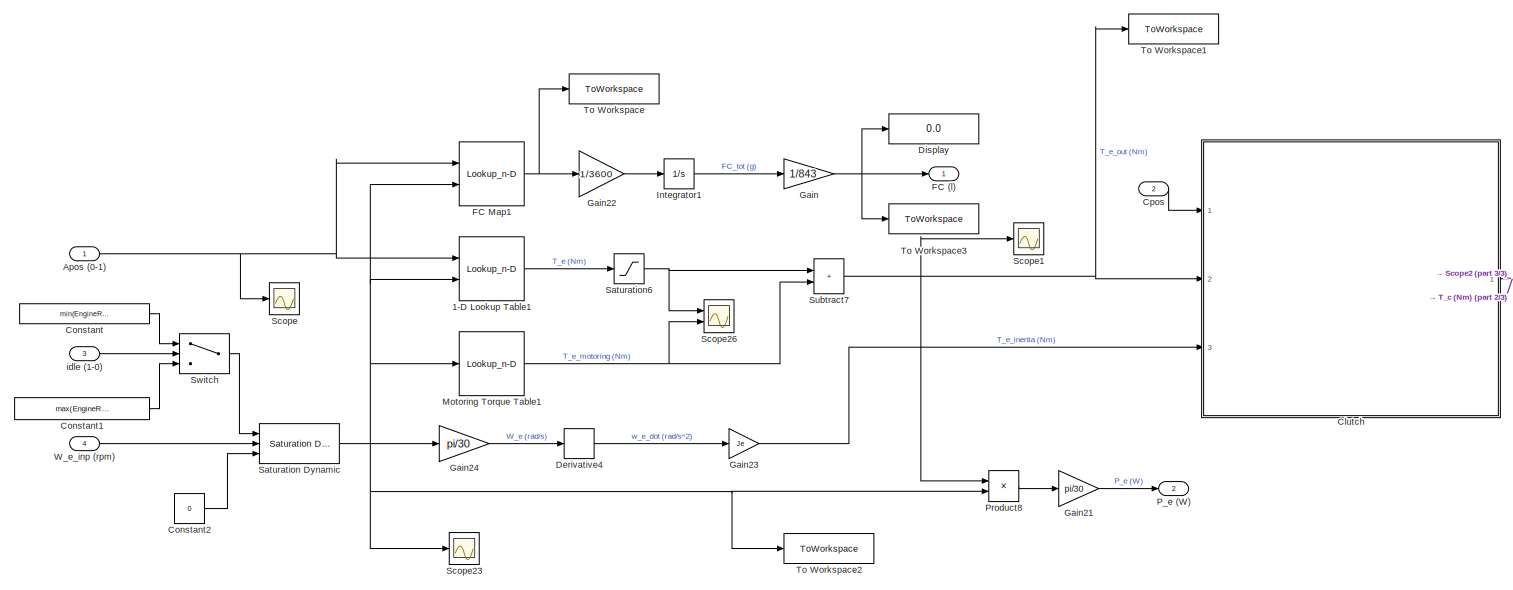
[diagram: ICE Vehicle model/Engine Model - part 1/3, most of the canvas]
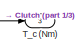
[diagram: ICE Vehicle model/Engine Model - part 2/3, middle right region]
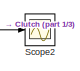
[diagram: ICE Vehicle model/Engine Model - part 3/3, middle right region]
BLOCK [SubSystem] ICE Vehicle model/Engine Model
  Ports = [4, 3]
  RequestExecContextInheritance = off
BLOCK [Lookup_n-D] ICE Vehicle model/Engine Model/1-D Lookup Table1
  BreakpointsForDimension1 = ThrotPos
  BreakpointsForDimension2 = RpmBrkPnt
  InputPortMap = u0,u1
  InternalRulePriority = Speed
  Ports = [2, 1]
  RndMeth = Simplest
  Table = ThrotTableVal
BLOCK [Inport] ICE Vehicle model/Engine Model/Apos (0-1)
BLOCK [SubSystem] ICE Vehicle model/Engine Model/Clutch
  Ports = [3, 1]
  RequestExecContextInheritance = off
BLOCK [Sum] ICE Vehicle model/Engine Model/Clutch/Add
  IconShape = rectangular
  Ports = [2, 1]
BLOCK [Product] ICE Vehicle model/Engine Model/Clutch/Clutch value1
  Ports = [2, 1]
BLOCK [Inport] ICE Vehicle model/Engine Model/Clutch/Cpos
BLOCK [Gain] ICE Vehicle model/Engine Model/Clutch/Gain20
  Gain = etaClutch
BLOCK [Saturate] ICE Vehicle model/Engine Model/Clutch/Saturation2
  LowerLimit = 0
  UpperLimit = inf
BLOCK [Scope] ICE Vehicle model/Engine Model/Clutch/Scope
  Floating = off
  NumInputPorts = 1
  Ports = [1]
  ScopeSpecificationString = Simulink.scopes.TimeScopeBlockCfg('CurrentConfiguration', extmgr.ConfigurationSet(extmgr.Configuration('Core','General UI',true),extmgr.Configuration('Core','Source UI',true),extmgr.Configuration('Sources','WiredSimulink',true,'DataLoggingVariableName','ScopeData3'),extmgr.Configuration('Visuals','Time Domain',true,'SerializedDisplays',{struct('MinYLimReal','-37.57038','MaxYLimReal','338.13338','Y...<+1409ch>
BLOCK [Scope] ICE Vehicle model/Engine Model/Clutch/Scope1
  Floating = off
  NumInputPorts = 2
  Ports = [2]
  ScopeSpecificationString = Simulink.scopes.TimeScopeBlockCfg('CurrentConfiguration', extmgr.ConfigurationSet(extmgr.Configuration('Core','General UI',true),extmgr.Configuration('Core','Source UI',true),extmgr.Configuration('Sources','WiredSimulink',true,'DataLoggingVariableName','ScopeData3'),extmgr.Configuration('Visuals','Time Domain',true,'SerializedDisplays',{struct('MinYLimReal','-563.75329','MaxYLimReal','403.41363','...<+1420ch>
BLOCK [Outport] ICE Vehicle model/Engine Model/Clutch/T_c (Nm)
BLOCK [Inport] ICE Vehicle model/Engine Model/Clutch/T_e (Nm)
  Port = 2
BLOCK [Inport] ICE Vehicle model/Engine Model/Clutch/T_e_inertia (Nm)
  Port = 3
BLOCK [Constant] ICE Vehicle model/Engine Model/Constant
  Value = min(EngineRpm)
BLOCK [Constant] ICE Vehicle model/Engine Model/Constant1
  Value = max(EngineRpm)*0.7
BLOCK [Constant] ICE Vehicle model/Engine Model/Constant2
  Value = 0
BLOCK [Inport] ICE Vehicle model/Engine Model/Cpos
  Port = 2
BLOCK [Derivative] ICE Vehicle model/Engine Model/Derivative4
BLOCK [Display] ICE Vehicle model/Engine Model/Display
  Decimation = 1
  Ports = [1]
BLOCK [Outport] ICE Vehicle model/Engine Model/FC (l)
BLOCK [Lookup_n-D] ICE Vehicle model/Engine Model/FC Map1
  BreakpointsForDimension1 = ThrotPos
  BreakpointsForDimension2 = RpmBrkPnt
  InputPortMap = u0,u1
  InternalRulePriority = Speed
  Ports = [2, 1]
  RndMeth = Simplest
  Table = FCTableVal
BLOCK [Gain] ICE Vehicle model/Engine Model/Gain
  Gain = 1/843
BLOCK [Gain] ICE Vehicle model/Engine Model/Gain21
  Gain = pi/30
BLOCK [Gain] ICE Vehicle model/Engine Model/Gain22
  Gain = 1/3600
BLOCK [Gain] ICE Vehicle model/Engine Model/Gain23
  Gain = Je
BLOCK [Gain] ICE Vehicle model/Engine Model/Gain24
  Gain = pi/30
BLOCK [Integrator] ICE Vehicle model/Engine Model/Integrator1
  Ports = [1, 1]
BLOCK [Lookup_n-D] ICE Vehicle model/Engine Model/Motoring Torque Table1
  BreakpointsForDimension1 = EngineRpm
  BreakpointsForDimension2 = G1Inprpm
  InputPortMap = u0
  InternalRulePriority = Speed
  InterpMethod = Linear Lagrange
  NumberOfTableDimensions = 1
  Ports = [1, 1]
  RndMeth = Simplest
  Table = MotoringTor
BLOCK [Outport] ICE Vehicle model/Engine Model/P_e (W)
  Port = 2
BLOCK [Product] ICE Vehicle model/Engine Model/Product8
  Ports = [2, 1]
BLOCK [Reference] ICE Vehicle model/Engine Model/Saturation Dynamic  REF=simulink/Discontinuities/Saturation
Dynamic
  Ports = [3, 1]
  SourceBlock = simulink/Discontinuities/Saturation\nDynamic
  SourceProductBaseCode = SL
  SourceType = Saturation Dynamic
BLOCK [Saturate] ICE Vehicle model/Engine Model/Saturation6
  LowerLimit = 0
  UpperLimit = max(ThrotTableVal, [], 'all')
BLOCK [Scope] ICE Vehicle model/Engine Model/Scope
  Floating = off
  NumInputPorts = 1
  Ports = [1]
  ScopeSpecificationString = Simulink.scopes.TimeScopeBlockCfg('CurrentConfiguration', extmgr.ConfigurationSet(extmgr.Configuration('Core','General UI',true),extmgr.Configuration('Core','Source UI',true),extmgr.Configuration('Sources','WiredSimulink',true,'DataLoggingVariableName','ScopeData1'),extmgr.Configuration('Visuals','Time Domain',true,'SerializedDisplays',{struct('MinYLimReal','-0.125','MaxYLimReal','1.125','YLabelRe...<+1428ch>
BLOCK [Scope] ICE Vehicle model/Engine Model/Scope1
  Floating = off
  NumInputPorts = 1
  Ports = [1]
  ScopeSpecificationString = Simulink.scopes.TimeScopeBlockCfg('CurrentConfiguration', extmgr.ConfigurationSet(extmgr.Configuration('Core','General UI',true),extmgr.Configuration('Core','Source UI',true),extmgr.Configuration('Sources','WiredSimulink',true,'DataLoggingVariableName','ScopeData4'),extmgr.Configuration('Visuals','Time Domain',true,'SerializedDisplays',{struct('MinYLimReal','-524.98318','MaxYLimReal','2487.49157',...<+1460ch>
BLOCK [Scope] ICE Vehicle model/Engine Model/Scope2
  Floating = off
  NumInputPorts = 1
  Ports = [1]
  ScopeSpecificationString = Simulink.scopes.TimeScopeBlockCfg('CurrentConfiguration', extmgr.ConfigurationSet(extmgr.Configuration('Core','General UI',true),extmgr.Configuration('Core','Source UI',true),extmgr.Configuration('Sources','WiredSimulink',true,'DataLoggingVariableName','ScopeData2'),extmgr.Configuration('Visuals','Time Domain',true,'SerializedDisplays',{struct('MinYLimReal','-669.77662','MaxYLimReal','6027.9896','...<+1409ch>
BLOCK [Scope] ICE Vehicle model/Engine Model/Scope23
  Floating = off
  NumInputPorts = 1
  Ports = [1]
  ScopeSpecificationString = Simulink.scopes.TimeScopeBlockCfg('CurrentConfiguration', extmgr.ConfigurationSet(extmgr.Configuration('Core','General UI',true),extmgr.Configuration('Core','Source UI',true),extmgr.Configuration('Sources','WiredSimulink',true,'DataLoggingVariableName','ScopeData9'),extmgr.Configuration('Visuals','Time Domain',true,'SerializedDisplays',{struct('MinYLimReal','350.99906','MaxYLimReal','2841.00842','...<+1585ch>
BLOCK [Scope] ICE Vehicle model/Engine Model/Scope26
  Floating = off
  NumInputPorts = 2
  Ports = [2]
  ScopeSpecificationString = Simulink.scopes.TimeScopeBlockCfg('CurrentConfiguration', extmgr.ConfigurationSet(extmgr.Configuration('Core','General UI',true),extmgr.Configuration('Core','Source UI',true),extmgr.Configuration('Sources','WiredSimulink',true,'DataLoggingVariableName','ScopeData12'),extmgr.Configuration('Visuals','Time Domain',true,'SerializedDisplays',{struct('MinYLimReal','-545.12767','MaxYLimReal','2668.79196'...<+1478ch>
BLOCK [Sum] ICE Vehicle model/Engine Model/Subtract7
  IconShape = rectangular
  Ports = [2, 1]
BLOCK [Switch] ICE Vehicle model/Engine Model/Switch
  Criteria = u2 > Threshold
  InputSameDT = off
  SaturateOnIntegerOverflow = off
BLOCK [Outport] ICE Vehicle model/Engine Model/T_c (Nm)
  Port = 3
BLOCK [ToWorkspace] ICE Vehicle model/Engine Model/To Workspace
  FixptAsFi = on
  MaxDataPoints = inf
  Ports = [1]
  SampleTime = -1
  SaveFormat = Timeseries
  VariableName = FCgphval
BLOCK [ToWorkspace] ICE Vehicle model/Engine Model/To Workspace1
  FixptAsFi = on
  MaxDataPoints = inf
  Ports = [1]
  SampleTime = -1
  SaveFormat = Timeseries
  VariableName = T_e_out
BLOCK [ToWorkspace] ICE Vehicle model/Engine Model/To Workspace2
  FixptAsFi = on
  MaxDataPoints = inf
  Ports = [1]
  SampleTime = -1
  SaveFormat = Timeseries
  VariableName = W_e_out
BLOCK [ToWorkspace] ICE Vehicle model/Engine Model/To Workspace3
  FixptAsFi = on
  MaxDataPoints = inf
  Ports = [1]
  SampleTime = -1
  SaveFormat = Timeseries
  VariableName = FCtot
BLOCK [Inport] ICE Vehicle model/Engine Model/W_e_inp (rpm)
  Port = 4
BLOCK [Inport] ICE Vehicle model/Engine Model/idle (1-0)
  Port = 3
BLOCK [Inport] ICE Vehicle model/F_res (N)
  NameLocation = top
  Port = 6
BLOCK [Inport] ICE Vehicle model/GNo
  Port = 4
BLOCK [Gain] ICE Vehicle model/Gain7
  Gain = 30/(pi*DynRolRad)
  NameLocation = top
BLOCK [Gain] ICE Vehicle model/Gain8
  Gain = FDR
  NameLocation = top
BLOCK [SubSystem] ICE Vehicle model/Gearbox
  Ports = [3, 4]
  RequestExecContextInheritance = off
BLOCK [Constant] ICE Vehicle model/Gearbox/Constant20
BLOCK [Derivative] ICE Vehicle model/Gearbox/Derivative5
BLOCK [LookupNDDirect] ICE Vehicle model/Gearbox/Direct Lookup Table (n-D)2
  NumberOfTableDimensions = 1
  Ports = [1, 1]
  Table = GRa
BLOCK [Product] ICE Vehicle model/Gearbox/Divide
  Inputs = */
  Ports = [2, 1]
BLOCK [Lookup_n-D] ICE Vehicle model/Gearbox/GBX Loss Tables1
  BreakpointsForDimension1 = GInpTor
  BreakpointsForDimension2 = GInprpm
  BreakpointsForDimension3 = GNo
  InputPortMap = u0,u1,u2
  InternalRulePriority = Speed
  InterpMethod = Linear Lagrange
  NumberOfTableDimensions = 3
  Ports = [3, 1]
  RndMeth = Simplest
  Table = GTorLoss
BLOCK [Inport] ICE Vehicle model/Gearbox/GNo
BLOCK [Outport] ICE Vehicle model/Gearbox/GRa
  Port = 4
BLOCK [Gain] ICE Vehicle model/Gearbox/Gain12
  Gain = pi/30
BLOCK [Gain] ICE Vehicle model/Gearbox/Gain17
  Gain = Jm
BLOCK [Sum] ICE Vehicle model/Gearbox/Index1
  IconShape = rectangular
  Inputs = +-
  Ports = [2, 1]
BLOCK [Outport] ICE Vehicle model/Gearbox/P_g (W)
BLOCK [Product] ICE Vehicle model/Gearbox/Product12
  Ports = [2, 1]
BLOCK [Product] ICE Vehicle model/Gearbox/Product13
  Ports = [2, 1]
BLOCK [Product] ICE Vehicle model/Gearbox/Product7
  Ports = [2, 1]
BLOCK [Saturate] ICE Vehicle model/Gearbox/Saturation7
  LowerLimit = 0
  UpperLimit = inf
BLOCK [Scope] ICE Vehicle model/Gearbox/Scope
  Floating = off
  NumInputPorts = 4
  Ports = [4]
  ScopeSpecificationString = Simulink.scopes.TimeScopeBlockCfg('CurrentConfiguration', extmgr.ConfigurationSet(extmgr.Configuration('Core','General UI',true),extmgr.Configuration('Core','Source UI',true),extmgr.Configuration('Sources','WiredSimulink',true,'DataLoggingVariableName','ScopeData1'),extmgr.Configuration('Visuals','Time Domain',true,'SerializedDisplays',{struct('MinYLimReal','-26850.18862','MaxYLimReal','12483.5529...<+1607ch>
BLOCK [Scope] ICE Vehicle model/Gearbox/Scope1
  Floating = off
  NumInputPorts = 1
  Ports = [1]
  ScopeSpecificationString = Simulink.scopes.TimeScopeBlockCfg('CurrentConfiguration', extmgr.ConfigurationSet(extmgr.Configuration('Core','General UI',true),extmgr.Configuration('Core','Source UI',true),extmgr.Configuration('Sources','WiredSimulink',true,'DataLoggingVariableName','ScopeData5'),extmgr.Configuration('Visuals','Time Domain',true,'SerializedDisplays',{struct('MinYLimReal','-152.9114','MaxYLimReal','1376.20262','...<+1388ch>
BLOCK [Scope] ICE Vehicle model/Gearbox/Scope2
  Floating = off
  NumInputPorts = 1
  Ports = [1]
  ScopeSpecificationString = Simulink.scopes.TimeScopeBlockCfg('CurrentConfiguration', extmgr.ConfigurationSet(extmgr.Configuration('Core','General UI',true),extmgr.Configuration('Core','Source UI',true),extmgr.Configuration('Sources','WiredSimulink',true,'DataLoggingVariableName','ScopeData6'),extmgr.Configuration('Visuals','Time Domain',true,'SerializedDisplays',{struct('MinYLimReal','1459.1636','MaxYLimReal','2074.56888','...<+1437ch>
BLOCK [Sum] ICE Vehicle model/Gearbox/Subtract6
  IconShape = rectangular
  Inputs = ++-
  Ports = [3, 1]
BLOCK [Inport] ICE Vehicle model/Gearbox/T_c (Nm)
  Port = 2
BLOCK [Outport] ICE Vehicle model/Gearbox/T_g_out (Nm)
  Port = 2
BLOCK [Inport] ICE Vehicle model/Gearbox/W_c_real (rpm)
  Port = 3
BLOCK [Outport] ICE Vehicle model/Gearbox/W_g (rpm)
  Port = 3
BLOCK [Memory] ICE Vehicle model/Memory
  NameLocation = top
BLOCK [Product] ICE Vehicle model/Product3
  NameLocation = top
  Ports = [2, 1]
BLOCK [Saturate] ICE Vehicle model/Saturation4
  LowerLimit = min(EngineRpmRaw)
  NameLocation = top
  UpperLimit = max(EngineRpmRaw)
BLOCK [Scope] ICE Vehicle model/Scope
  Floating = off
  NumInputPorts = 1
  Ports = [1]
  ScopeSpecificationString = Simulink.scopes.TimeScopeBlockCfg('CurrentConfiguration', extmgr.ConfigurationSet(extmgr.Configuration('Core','General UI',true),extmgr.Configuration('Core','Source UI',true),extmgr.Configuration('Sources','WiredSimulink',true,'DataLoggingVariableName','ScopeData6'),extmgr.Configuration('Visuals','Time Domain',true,'SerializedDisplays',{struct('MinYLimReal','-0.375','MaxYLimReal','13.375','YLabelR...<+1546ch>
BLOCK [Scope] ICE Vehicle model/Scope1
  Floating = off
  NumInputPorts = 2
  Ports = [2]
  ScopeSpecificationString = Simulink.scopes.TimeScopeBlockCfg('CurrentConfiguration', extmgr.ConfigurationSet(extmgr.Configuration('Core','General UI',true),extmgr.Configuration('Core','Source UI',true),extmgr.Configuration('Sources','WiredSimulink',true,'DataLoggingVariableName','ScopeData7'),extmgr.Configuration('Visuals','Time Domain',true,'SerializedDisplays',{struct('MinYLimReal','-313.66879','MaxYLimReal','2823.01907',...<+1520ch>
BLOCK [Scope] ICE Vehicle model/Scope2
  Floating = off
  NumInputPorts = 1
  Ports = [1]
  ScopeSpecificationString = Simulink.scopes.TimeScopeBlockCfg('CurrentConfiguration', extmgr.ConfigurationSet(extmgr.Configuration('Core','General UI',true),extmgr.Configuration('Core','Source UI',true),extmgr.Configuration('Sources','WiredSimulink',true,'DataLoggingVariableName','ScopeData4'),extmgr.Configuration('Visuals','Time Domain',true,'SerializedDisplays',{struct('MinYLimReal','-0.125','MaxYLimReal','1.125','YLabelRe...<+1357ch>
BLOCK [Scope] ICE Vehicle model/Scope22
  Floating = off
  NumInputPorts = 1
  Ports = [1]
  ScopeSpecificationString = Simulink.scopes.TimeScopeBlockCfg('CurrentConfiguration', extmgr.ConfigurationSet(extmgr.Configuration('Core','General UI',true),extmgr.Configuration('Core','Source UI',true),extmgr.Configuration('Sources','WiredSimulink',true,'DataLoggingVariableName','ScopeData17'),extmgr.Configuration('Visuals','Time Domain',true,'SerializedDisplays',{struct('MinYLimReal','-90283.29087','MaxYLimReal','368355.37...<+1441ch>
BLOCK [Scope] ICE Vehicle model/Scope23
  Floating = off
  NumInputPorts = 1
  Ports = [1]
  ScopeSpecificationString = Simulink.scopes.TimeScopeBlockCfg('CurrentConfiguration', extmgr.ConfigurationSet(extmgr.Configuration('Core','General UI',true),extmgr.Configuration('Core','Source UI',true),extmgr.Configuration('Sources','WiredSimulink',true,'DataLoggingVariableName','ScopeData18'),extmgr.Configuration('Visuals','Time Domain',true,'SerializedDisplays',{struct('MinYLimReal','11.74572','MaxYLimReal','12.41442','YL...<+1451ch>
BLOCK [Scope] ICE Vehicle model/Scope24
  Floating = off
  NumInputPorts = 1
  Ports = [1]
  ScopeSpecificationString = Simulink.scopes.TimeScopeBlockCfg('CurrentConfiguration', extmgr.ConfigurationSet(extmgr.Configuration('Core','General UI',true),extmgr.Configuration('Core','Source UI',true),extmgr.Configuration('Sources','WiredSimulink',true,'DataLoggingVariableName','ScopeData19'),extmgr.Configuration('Visuals','Time Domain',true,'SerializedDisplays',{struct('MinYLimReal','-1528283.35449','MaxYLimReal','1314214...<+1490ch>
BLOCK [ToWorkspace] ICE Vehicle model/To Workspace
  FixptAsFi = on
  MaxDataPoints = inf
  Ports = [1]
  SampleTime = -1
  SaveFormat = Timeseries
  VariableName = Vmpsval
BLOCK [ToWorkspace] ICE Vehicle model/To Workspace1
  FixptAsFi = on
  MaxDataPoints = inf
  Ports = [1]
  SampleTime = -1
  SaveFormat = Timeseries
  VariableName = distval
BLOCK [Outport] ICE Vehicle model/d (m)
  Port = 2
BLOCK [Inport] ICE Vehicle model/idle (1-0)
  Port = 5
BLOCK [Outport] ICE Vehicle model/v (m//s)
BLOCK [Inport] ICE Vehicle model/v_init (m//s)
  NameLocation = top
  Port = 7
BLOCK [Scope] Scope2
  Floating = off
  NumInputPorts = 1
  Ports = [1]
  ScopeSpecificationString = Simulink.scopes.TimeScopeBlockCfg('CurrentConfiguration', extmgr.ConfigurationSet(extmgr.Configuration('Core','General UI',true),extmgr.Configuration('Core','Source UI',true),extmgr.Configuration('Sources','WiredSimulink',true,'DataLoggingVariableName','ScopeData7'),extmgr.Configuration('Visuals','Time Domain',true,'SerializedDisplays',{struct('MinYLimReal','-26163.45698','MaxYLimReal','33891.2473...<+1471ch>
ANNOTATION Driver Model/Gear and Clutch Definition/Clutch position definition/Triggered Single Pulse/+ve edge detect: Edge
LINE Constant:1 -> ICE Vehicle model:7
NET Driver Model/Acc//Dec Control/Add:1 -> Driver Model/Acc//Dec Control/Generated Operating Cycle:1, Driver Model/Acc//Dec Control/Gradient gear limiter:1
LINE Driver Model/Acc//Dec Control/Cast To Boolean1:1 -> Driver Model/Acc//Dec Control/Longitudinal Driver:3
LINE Driver Model/Acc//Dec Control/Cast To Boolean:1 -> Driver Model/Acc//Dec Control/Longitudinal Driver:2
LINE Driver Model/Acc//Dec Control/Constant7:1 -> Driver Model/Acc//Dec Control/MaxSpinG1:1
LINE Driver Model/Acc//Dec Control/Derivative:1 -> Driver Model/Acc//Dec Control/Driving State:2
LINE Driver Model/Acc//Dec Control/Distance from Stop point/1-D Lookup Table1:1 -> Driver Model/Acc//Dec Control/Distance from Stop point/Subtract:2
LINE Driver Model/Acc//Dec Control/Distance from Stop point/1-D Lookup Table2:1 -> Driver Model/Acc//Dec Control/Distance from Stop point/Subtract2:1
LINE Driver Model/Acc//Dec Control/Distance from Stop point/1-D Lookup Table:1 -> Driver Model/Acc//Dec Control/Distance from Stop point/Ceil1:1
NET Driver Model/Acc//Dec Control/Distance from Stop point/Ceil1:1 -> Driver Model/Acc//Dec Control/Distance from Stop point/1-D Lookup Table1:1, Driver Model/Acc//Dec Control/Distance from Stop point/Scope:1, Driver Model/Acc//Dec Control/Distance from Stop point/Subtract1:1
LINE Driver Model/Acc//Dec Control/Distance from Stop point/Constant:1 -> Driver Model/Acc//Dec Control/Distance from Stop point/Subtract1:2
LINE Driver Model/Acc//Dec Control/Distance from Stop point/Subtract1:1 -> Driver Model/Acc//Dec Control/Distance from Stop point/1-D Lookup Table2:1
NET Driver Model/Acc//Dec Control/Distance from Stop point/Subtract2:1 -> Driver Model/Acc//Dec Control/Distance from Stop point/Display1:1, Driver Model/Acc//Dec Control/Distance from Stop point/Dist2PStop (m):1
NET Driver Model/Acc//Dec Control/Distance from Stop point/Subtract:1 -> Driver Model/Acc//Dec Control/Distance from Stop point/Display:1, Driver Model/Acc//Dec Control/Distance from Stop point/Dist2NStop (m):1
NET Driver Model/Acc//Dec Control/Distance from Stop point/d(m):1 -> Driver Model/Acc//Dec Control/Distance from Stop point/1-D Lookup Table:1, Driver Model/Acc//Dec Control/Distance from Stop point/Subtract2:2, Driver Model/Acc//Dec Control/Distance from Stop point/Subtract:1
NET Driver Model/Acc//Dec Control/Distance from Stop point:1 -> Driver Model/Acc//Dec Control/Driving State:5, Driver Model/Acc//Dec Control/Scope2:2
LINE Driver Model/Acc//Dec Control/Distance from Stop point:2 -> Driver Model/Acc//Dec Control/Driving State:8
NET Driver Model/Acc//Dec Control/Driving State:1 -> Driver Model/Acc//Dec Control/Cast To Boolean:1, Driver Model/Acc//Dec Control/idle (0-1):1
NET Driver Model/Acc//Dec Control/Driving State:2 -> Driver Model/Acc//Dec Control/Cast To Boolean1:1, Driver Model/Acc//Dec Control/Longitudinal Driver:4
LINE Driver Model/Acc//Dec Control/Driving State:3 -> Driver Model/Acc//Dec Control/Product:2
NET Driver Model/Acc//Dec Control/Driving State:4 -> Driver Model/Acc//Dec Control/Add:1, Driver Model/Acc//Dec Control/Scope5:1
NET Driver Model/Acc//Dec Control/Generated Operating Cycle:1 -> Driver Model/Acc//Dec Control/Saturation:1, Driver Model/Acc//Dec Control/Scope1:1
LINE Driver Model/Acc//Dec Control/Gradient gear limiter/Constant5:1 -> Driver Model/Acc//Dec Control/Gradient gear limiter/If Action Subsystem2:1
LINE Driver Model/Acc//Dec Control/Gradient gear limiter/Constant6:1 -> Driver Model/Acc//Dec Control/Gradient gear limiter/If Action Subsystem6:1
LINE Driver Model/Acc//Dec Control/Gradient gear limiter/If Action Subsystem2/In1:1 -> Driver Model/Acc//Dec Control/Gradient gear limiter/If Action Subsystem2/Out1:1
LINE Driver Model/Acc//Dec Control/Gradient gear limiter/If Action Subsystem2:1 -> Driver Model/Acc//Dec Control/Gradient gear limiter/Merge:1
LINE Driver Model/Acc//Dec Control/Gradient gear limiter/If Action Subsystem6/In1:1 -> Driver Model/Acc//Dec Control/Gradient gear limiter/If Action Subsystem6/Out1:1
LINE Driver Model/Acc//Dec Control/Gradient gear limiter/If Action Subsystem6:1 -> Driver Model/Acc//Dec Control/Gradient gear limiter/Merge:2
LINE Driver Model/Acc//Dec Control/Gradient gear limiter/If:1 -> Driver Model/Acc//Dec Control/Gradient gear limiter/If Action Subsystem2:ifaction
LINE Driver Model/Acc//Dec Control/Gradient gear limiter/If:2 -> Driver Model/Acc//Dec Control/Gradient gear limiter/If Action Subsystem6:ifaction
LINE Driver Model/Acc//Dec Control/Gradient gear limiter/In1:1 -> Driver Model/Acc//Dec Control/Gradient gear limiter/Slope (%)1:1
LINE Driver Model/Acc//Dec Control/Gradient gear limiter/Merge:1 -> Driver Model/Acc//Dec Control/Gradient gear limiter/Out1:1
NET Driver Model/Acc//Dec Control/Gradient gear limiter/Slope (%)1:1 -> Driver Model/Acc//Dec Control/Gradient gear limiter/If:1, Driver Model/Acc//Dec Control/Gradient gear limiter/Scope:1
LINE Driver Model/Acc//Dec Control/Gradient gear limiter:1 -> Driver Model/Acc//Dec Control/Switch1:2
LINE Driver Model/Acc//Dec Control/Longitudinal Driver:2 -> Driver Model/Acc//Dec Control/Product:1
NET Driver Model/Acc//Dec Control/Longitudinal Driver:3 -> Driver Model/Acc//Dec Control/Bpos (0-1):1, Driver Model/Acc//Dec Control/Scope:2
LINE Driver Model/Acc//Dec Control/MaxSpinG1:1 -> Driver Model/Acc//Dec Control/Switch1:1
NET Driver Model/Acc//Dec Control/Product:1 -> Driver Model/Acc//Dec Control/Arate(0-1):1, Driver Model/Acc//Dec Control/Scope:1
LINE Driver Model/Acc//Dec Control/Saturation:1 -> Driver Model/Acc//Dec Control/Switch1:3
LINE Driver Model/Acc//Dec Control/Slope (%):1 -> Driver Model/Acc//Dec Control/Longitudinal Driver:6
NET Driver Model/Acc//Dec Control/Stop duration1/1-D Lookup Table:1 -> Driver Model/Acc//Dec Control/Stop duration1/Ceil:1, Driver Model/Acc//Dec Control/Stop duration1/Scope1:1
NET Driver Model/Acc//Dec Control/Stop duration1/Ceil:1 -> Driver Model/Acc//Dec Control/Stop duration1/Scope1:2, Driver Model/Acc//Dec Control/Stop duration1/Subtract1:1
LINE Driver Model/Acc//Dec Control/Stop duration1/Constant2:1 -> Driver Model/Acc//Dec Control/Stop duration1/Subtract1:2
LINE Driver Model/Acc//Dec Control/Stop duration1/Constant:1 -> Driver Model/Acc//Dec Control/Stop duration1/Subtract:2
NET Driver Model/Acc//Dec Control/Stop duration1/Direct Lookup Table (n-D):1 -> Driver Model/Acc//Dec Control/Stop duration1/Scope:1, Driver Model/Acc//Dec Control/Stop duration1/Stop_t (s):1
LINE Driver Model/Acc//Dec Control/Stop duration1/Subtract1:1 -> Driver Model/Acc//Dec Control/Stop duration1/Direct Lookup Table (n-D):1
LINE Driver Model/Acc//Dec Control/Stop duration1/Subtract:1 -> Driver Model/Acc//Dec Control/Stop duration1/1-D Lookup Table:1
NET Driver Model/Acc//Dec Control/Stop duration1/d (m):1 -> Driver Model/Acc//Dec Control/Stop duration1/Scope2:1, Driver Model/Acc//Dec Control/Stop duration1/Subtract:1
LINE Driver Model/Acc//Dec Control/Stop duration1:1 -> Driver Model/Acc//Dec Control/Driving State:4
NET Driver Model/Acc//Dec Control/Stopping distance calc/Add:1 -> Driver Model/Acc//Dec Control/Stopping distance calc/Dist2Dec (m):1, Driver Model/Acc//Dec Control/Stopping distance calc/Scope:1
LINE Driver Model/Acc//Dec Control/Stopping distance calc/Constant2:1 -> Driver Model/Acc//Dec Control/Stopping distance calc/Magnitude Squared:1
LINE Driver Model/Acc//Dec Control/Stopping distance calc/Constant4:1 -> Driver Model/Acc//Dec Control/Stopping distance calc/Gain2:1
NET Driver Model/Acc//Dec Control/Stopping distance calc/Divide:1 -> Driver Model/Acc//Dec Control/Stopping distance calc/Add:2, Driver Model/Acc//Dec Control/Stopping distance calc/Gain1:1
LINE Driver Model/Acc//Dec Control/Stopping distance calc/Gain1:1 -> Driver Model/Acc//Dec Control/Stopping distance calc/Add:1
LINE Driver Model/Acc//Dec Control/Stopping distance calc/Gain2:1 -> Driver Model/Acc//Dec Control/Stopping distance calc/Gain:1
LINE Driver Model/Acc//Dec Control/Stopping distance calc/Gain:1 -> Driver Model/Acc//Dec Control/Stopping distance calc/Divide:2
LINE Driver Model/Acc//Dec Control/Stopping distance calc/Magnitude Squared1:1 -> Driver Model/Acc//Dec Control/Stopping distance calc/Subtract1:2
LINE Driver Model/Acc//Dec Control/Stopping distance calc/Magnitude Squared:1 -> Driver Model/Acc//Dec Control/Stopping distance calc/Subtract1:1
LINE Driver Model/Acc//Dec Control/Stopping distance calc/Subtract1:1 -> Driver Model/Acc//Dec Control/Stopping distance calc/Divide:1
LINE Driver Model/Acc//Dec Control/Stopping distance calc/v (m//s):1 -> Driver Model/Acc//Dec Control/Stopping distance calc/Magnitude Squared1:1
NET Driver Model/Acc//Dec Control/Stopping distance calc:1 -> Driver Model/Acc//Dec Control/Display:1, Driver Model/Acc//Dec Control/Driving State:6, Driver Model/Acc//Dec Control/Scope2:1
LINE Driver Model/Acc//Dec Control/Switch1:1 -> Driver Model/Acc//Dec Control/Longitudinal Driver:1
LINE Driver Model/Acc//Dec Control/Trip complete/Abs:1 -> Driver Model/Acc//Dec Control/Trip complete/If:1
LINE Driver Model/Acc//Dec Control/Trip complete/Constant1:1 -> Driver Model/Acc//Dec Control/Trip complete/Subtract:2
LINE Driver Model/Acc//Dec Control/Trip complete/Constant2:1 -> Driver Model/Acc//Dec Control/Trip complete/If Action Subsystem:1
LINE Driver Model/Acc//Dec Control/Trip complete/Delay:1 -> Driver Model/Acc//Dec Control/Trip complete/Stop Simulation:1
LINE Driver Model/Acc//Dec Control/Trip complete/Derivative:1 -> Driver Model/Acc//Dec Control/Trip complete/If:2
LINE Driver Model/Acc//Dec Control/Trip complete/If Action Subsystem/In1:1 -> Driver Model/Acc//Dec Control/Trip complete/If Action Subsystem/Out1:1
LINE Driver Model/Acc//Dec Control/Trip complete/If Action Subsystem:1 -> Driver Model/Acc//Dec Control/Trip complete/Delay:1
LINE Driver Model/Acc//Dec Control/Trip complete/If:1 -> Driver Model/Acc//Dec Control/Trip complete/If Action Subsystem:ifaction
LINE Driver Model/Acc//Dec Control/Trip complete/Max:1 -> Driver Model/Acc//Dec Control/Trip complete/Subtract:1
LINE Driver Model/Acc//Dec Control/Trip complete/Subtract:1 -> Driver Model/Acc//Dec Control/Trip complete/Abs:1
NET Driver Model/Acc//Dec Control/Trip complete/d (m):1 -> Driver Model/Acc//Dec Control/Trip complete/Derivative:1, Driver Model/Acc//Dec Control/Trip complete/Max:1
LINE Driver Model/Acc//Dec Control/Upcoming speed/Add3:1 -> Driver Model/Acc//Dec Control/Upcoming speed/upcoming speed (m//s):1
LINE Driver Model/Acc//Dec Control/Upcoming speed/Ceil:1 -> Driver Model/Acc//Dec Control/Upcoming speed/Add3:1
LINE Driver Model/Acc//Dec Control/Upcoming speed/Constant:1 -> Driver Model/Acc//Dec Control/Upcoming speed/Add3:2
NET Driver Model/Acc//Dec Control/Upcoming speed/Saturation1:1 -> Driver Model/Acc//Dec Control/Upcoming speed/Scope:1, Driver Model/Acc//Dec Control/Upcoming speed/UpSp (m//s):1
LINE Driver Model/Acc//Dec Control/Upcoming speed/Saturation2:1 -> Driver Model/Acc//Dec Control/Upcoming speed/Ceil:1
LINE Driver Model/Acc//Dec Control/Upcoming speed/Segment number:1 -> Driver Model/Acc//Dec Control/Upcoming speed/Saturation2:1
LINE Driver Model/Acc//Dec Control/Upcoming speed/d (m):1 -> Driver Model/Acc//Dec Control/Upcoming speed/Segment number:1
LINE Driver Model/Acc//Dec Control/Upcoming speed/upcoming speed (m//s):1 -> Driver Model/Acc//Dec Control/Upcoming speed/Saturation1:1
LINE Driver Model/Acc//Dec Control/Upcoming speed:1 -> Driver Model/Acc//Dec Control/Driving State:7
NET Driver Model/Acc//Dec Control/d (m):1 -> Driver Model/Acc//Dec Control/Add:2, Driver Model/Acc//Dec Control/Distance from Stop point:1, Driver Model/Acc//Dec Control/Driving State:3, Driver Model/Acc//Dec Control/Slope (%):1, Driver Model/Acc//Dec Control/Stop duration1:1, Driver Model/Acc//Dec Control/Trip complete:1, Driver Model/Acc//Dec Control/Upcoming speed:1
NET Driver Model/Acc//Dec Control/v (m//s):1 -> Driver Model/Acc//Dec Control/Derivative:1, Driver Model/Acc//Dec Control/Driving State:1, Driver Model/Acc//Dec Control/Longitudinal Driver:5, Driver Model/Acc//Dec Control/Stopping distance calc:1
NET Driver Model/Acc//Dec Control:1 -> Driver Model/Gear and Clutch Definition:3, Driver Model/idle (1-0):1
LINE Driver Model/Acc//Dec Control:2 -> Driver Model/Bpos (0-1):1
LINE Driver Model/Acc//Dec Control:3 -> Driver Model/Driver Throttle Mapping ICE:3
LINE Driver Model/Driver Throttle Mapping ICE/Add:1 -> Driver Model/Driver Throttle Mapping ICE/Switch:3
NET Driver Model/Driver Throttle Mapping ICE/Arate(0-1):1 -> Driver Model/Driver Throttle Mapping ICE/Gain1:1, Driver Model/Driver Throttle Mapping ICE/Idling// Apos = 0:1
LINE Driver Model/Driver Throttle Mapping ICE/Constant1:1 -> Driver Model/Driver Throttle Mapping ICE/Switch:1
LINE Driver Model/Driver Throttle Mapping ICE/Constant20:1 -> Driver Model/Driver Throttle Mapping ICE/Index1:2
NET Driver Model/Driver Throttle Mapping ICE/Direct Lookup Table (n-D)2:1 -> Driver Model/Driver Throttle Mapping ICE/Divide:2, Driver Model/Driver Throttle Mapping ICE/Scope:1
LINE Driver Model/Driver Throttle Mapping ICE/Divide:1 -> Driver Model/Driver Throttle Mapping ICE/etaClutch2:1
LINE Driver Model/Driver Throttle Mapping ICE/F_res (N):1 -> Driver Model/Driver Throttle Mapping ICE/Add:2
LINE Driver Model/Driver Throttle Mapping ICE/GNo:1 -> Driver Model/Driver Throttle Mapping ICE/Index1:1
LINE Driver Model/Driver Throttle Mapping ICE/Gain10:1 -> Driver Model/Driver Throttle Mapping ICE/Divide:1
LINE Driver Model/Driver Throttle Mapping ICE/Gain1:1 -> Driver Model/Driver Throttle Mapping ICE/Gain4:1
LINE Driver Model/Driver Throttle Mapping ICE/Gain4:1 -> Driver Model/Driver Throttle Mapping ICE/Add:1
NET Driver Model/Driver Throttle Mapping ICE/Gain9:1 -> Driver Model/Driver Throttle Mapping ICE/Gain10:1, Driver Model/Driver Throttle Mapping ICE/Scope3:1, Driver Model/Driver Throttle Mapping ICE/T_w_req (Nm):1
LINE Driver Model/Driver Throttle Mapping ICE/Idling// Apos = 0/Apos(m//s^2):1 -> Driver Model/Driver Throttle Mapping ICE/Idling// Apos = 0/Idling:1
LINE Driver Model/Driver Throttle Mapping ICE/Idling// Apos = 0/Constant2:1 -> Driver Model/Driver Throttle Mapping ICE/Idling// Apos = 0/If Action Subsystem1:1
LINE Driver Model/Driver Throttle Mapping ICE/Idling// Apos = 0/Constant:1 -> Driver Model/Driver Throttle Mapping ICE/Idling// Apos = 0/If Action Subsystem:1
LINE Driver Model/Driver Throttle Mapping ICE/Idling// Apos = 0/Idling:1 -> Driver Model/Driver Throttle Mapping ICE/Idling// Apos = 0/If Action Subsystem:ifaction
LINE Driver Model/Driver Throttle Mapping ICE/Idling// Apos = 0/Idling:2 -> Driver Model/Driver Throttle Mapping ICE/Idling// Apos = 0/If Action Subsystem1:ifaction
LINE Driver Model/Driver Throttle Mapping ICE/Idling// Apos = 0/If Action Subsystem/In1:1 -> Driver Model/Driver Throttle Mapping ICE/Idling// Apos = 0/If Action Subsystem/Out1:1
LINE Driver Model/Driver Throttle Mapping ICE/Idling// Apos = 0/If Action Subsystem1/In1:1 -> Driver Model/Driver Throttle Mapping ICE/Idling// Apos = 0/If Action Subsystem1/Out1:1
LINE Driver Model/Driver Throttle Mapping ICE/Idling// Apos = 0/If Action Subsystem1:1 -> Driver Model/Driver Throttle Mapping ICE/Idling// Apos = 0/Merge:1
LINE Driver Model/Driver Throttle Mapping ICE/Idling// Apos = 0/If Action Subsystem:1 -> Driver Model/Driver Throttle Mapping ICE/Idling// Apos = 0/Merge:2
LINE Driver Model/Driver Throttle Mapping ICE/Idling// Apos = 0/Merge:1 -> Driver Model/Driver Throttle Mapping ICE/Idling// Apos = 0/Azero:1
LINE Driver Model/Driver Throttle Mapping ICE/Idling// Apos = 0:1 -> Driver Model/Driver Throttle Mapping ICE/Switch:2
LINE Driver Model/Driver Throttle Mapping ICE/Index1:1 -> Driver Model/Driver Throttle Mapping ICE/Saturation7:1
LINE Driver Model/Driver Throttle Mapping ICE/Lookup Throttle position:1 -> Driver Model/Driver Throttle Mapping ICE/Saturation2:1
NET Driver Model/Driver Throttle Mapping ICE/Saturation2:1 -> Driver Model/Driver Throttle Mapping ICE/Apos (0-1):1, Driver Model/Driver Throttle Mapping ICE/Scope1:1
LINE Driver Model/Driver Throttle Mapping ICE/Saturation7:1 -> Driver Model/Driver Throttle Mapping ICE/Direct Lookup Table (n-D)2:1
LINE Driver Model/Driver Throttle Mapping ICE/Switch:1 -> Driver Model/Driver Throttle Mapping ICE/Gain9:1
LINE Driver Model/Driver Throttle Mapping ICE/etaClutch2:1 -> Driver Model/Driver Throttle Mapping ICE/Lookup Throttle position:1
LINE Driver Model/Driver Throttle Mapping ICE:1 -> Driver Model/Gear and Clutch Definition:1
LINE Driver Model/Driver Throttle Mapping ICE:2 -> Driver Model/Apos(0-1):1
LINE Driver Model/F_res (N):1 -> Driver Model/Driver Throttle Mapping ICE:2
LINE Driver Model/Gear and Clutch Definition/Avl Torque @ gears:1 -> Driver Model/Gear and Clutch Definition/Ceil:1
LINE Driver Model/Gear and Clutch Definition/Ceil:1 -> Driver Model/Gear and Clutch Definition/Saturation1:1
LINE Driver Model/Gear and Clutch Definition/Clutch position definition/Constant1:1 -> Driver Model/Gear and Clutch Definition/Clutch position definition/If Action Subsystem1:1
LINE Driver Model/Gear and Clutch Definition/Clutch position definition/Constant2:1 -> Driver Model/Gear and Clutch Definition/Clutch position definition/If Action Subsystem3:1
LINE Driver Model/Gear and Clutch Definition/Clutch position definition/Constant3:1 -> Driver Model/Gear and Clutch Definition/Clutch position definition/If Action Subsystem4:1
LINE Driver Model/Gear and Clutch Definition/Clutch position definition/Constant4:1 -> Driver Model/Gear and Clutch Definition/Clutch position definition/If Action Subsystem2:1
LINE Driver Model/Gear and Clutch Definition/Clutch position definition/Constant:1 -> Driver Model/Gear and Clutch Definition/Clutch position definition/XOR:2
LINE Driver Model/Gear and Clutch Definition/Clutch position definition/Data Type Conversion:1 -> Driver Model/Gear and Clutch Definition/Clutch position definition/IC:1
NET Driver Model/Gear and Clutch Definition/Clutch position definition/GNo:1 -> Driver Model/Gear and Clutch Definition/Clutch position definition/If1:1, Driver Model/Gear and Clutch Definition/Clutch position definition/Memory:1
LINE Driver Model/Gear and Clutch Definition/Clutch position definition/IC:1 -> Driver Model/Gear and Clutch Definition/Clutch position definition/If:1
LINE Driver Model/Gear and Clutch Definition/Clutch position definition/If Action Subsystem1/CL:1 -> Driver Model/Gear and Clutch Definition/Clutch position definition/If Action Subsystem1/CLO:1
LINE Driver Model/Gear and Clutch Definition/Clutch position definition/If Action Subsystem1:1 -> Driver Model/Gear and Clutch Definition/Clutch position definition/Merge:1
LINE Driver Model/Gear and Clutch Definition/Clutch position definition/If Action Subsystem2/CL:1 -> Driver Model/Gear and Clutch Definition/Clutch position definition/If Action Subsystem2/CLO:1
LINE Driver Model/Gear and Clutch Definition/Clutch position definition/If Action Subsystem2:1 -> Driver Model/Gear and Clutch Definition/Clutch position definition/Merge:2
LINE Driver Model/Gear and Clutch Definition/Clutch position definition/If Action Subsystem3/CL:1 -> Driver Model/Gear and Clutch Definition/Clutch position definition/If Action Subsystem3/CLO:1
LINE Driver Model/Gear and Clutch Definition/Clutch position definition/If Action Subsystem3:1 -> Driver Model/Gear and Clutch Definition/Clutch position definition/Merge2:1
LINE Driver Model/Gear and Clutch Definition/Clutch position definition/If Action Subsystem4/CL:1 -> Driver Model/Gear and Clutch Definition/Clutch position definition/If Action Subsystem4/CLO:1
LINE Driver Model/Gear and Clutch Definition/Clutch position definition/If Action Subsystem4:1 -> Driver Model/Gear and Clutch Definition/Clutch position definition/Merge2:2
LINE Driver Model/Gear and Clutch Definition/Clutch position definition/If1:1 -> Driver Model/Gear and Clutch Definition/Clutch position definition/If Action Subsystem3:ifaction
LINE Driver Model/Gear and Clutch Definition/Clutch position definition/If1:2 -> Driver Model/Gear and Clutch Definition/Clutch position definition/If Action Subsystem4:ifaction
LINE Driver Model/Gear and Clutch Definition/Clutch position definition/If:1 -> Driver Model/Gear and Clutch Definition/Clutch position definition/If Action Subsystem1:ifaction
LINE Driver Model/Gear and Clutch Definition/Clutch position definition/If:2 -> Driver Model/Gear and Clutch Definition/Clutch position definition/If Action Subsystem2:ifaction
LINE Driver Model/Gear and Clutch Definition/Clutch position definition/Memory:1 -> Driver Model/Gear and Clutch Definition/Clutch position definition/If1:2
LINE Driver Model/Gear and Clutch Definition/Clutch position definition/Merge2:1 -> Driver Model/Gear and Clutch Definition/Clutch position definition/Triggered Single Pulse:1
NET Driver Model/Gear and Clutch Definition/Clutch position definition/Merge:1 -> Driver Model/Gear and Clutch Definition/Clutch position definition/Cpos:1, Driver Model/Gear and Clutch Definition/Clutch position definition/Scope1:2
LINE Driver Model/Gear and Clutch Definition/Clutch position definition/Triggered Single Pulse/+ve edge detect/Delay Input1:1 -> Driver Model/Gear and Clutch Definition/Clutch position definition/Triggered Single Pulse/+ve edge detect/FixPt Relational Operator:2
LINE Driver Model/Gear and Clutch Definition/Clutch position definition/Triggered Single Pulse/+ve edge detect/FixPt Relational Operator:1 -> Driver Model/Gear and Clutch Definition/Clutch position definition/Triggered Single Pulse/+ve edge detect/out:1
NET Driver Model/Gear and Clutch Definition/Clutch position definition/Triggered Single Pulse/+ve edge detect/Positive:1 -> Driver Model/Gear and Clutch Definition/Clutch position definition/Triggered Single Pulse/+ve edge detect/Delay Input1:1, Driver Model/Gear and Clutch Definition/Clutch position definition/Triggered Single Pulse/+ve edge detect/FixPt Relational Operator:1
LINE Driver Model/Gear and Clutch Definition/Clutch position definition/Triggered Single Pulse/+ve edge detect/signal:1 -> Driver Model/Gear and Clutch Definition/Clutch position definition/Triggered Single Pulse/+ve edge detect/Positive:1
LINE Driver Model/Gear and Clutch Definition/Clutch position definition/Triggered Single Pulse/+ve edge detect:1 -> Driver Model/Gear and Clutch Definition/Clutch position definition/Triggered Single Pulse/Add1:2
LINE Driver Model/Gear and Clutch Definition/Clutch position definition/Triggered Single Pulse/Add1:1 -> Driver Model/Gear and Clutch Definition/Clutch position definition/Triggered Single Pulse/Unit Delay1:1
LINE Driver Model/Gear and Clutch Definition/Clutch position definition/Triggered Single Pulse/Add:1 -> Driver Model/Gear and Clutch Definition/Clutch position definition/Triggered Single Pulse/Product1:2
LINE Driver Model/Gear and Clutch Definition/Clutch position definition/Triggered Single Pulse/Compare To Constant:1 -> Driver Model/Gear and Clutch Definition/Clutch position definition/Triggered Single Pulse/Logical Operator:1
LINE Driver Model/Gear and Clutch Definition/Clutch position definition/Triggered Single Pulse/Constant2:1 -> Driver Model/Gear and Clutch Definition/Clutch position definition/Triggered Single Pulse/Product:1
LINE Driver Model/Gear and Clutch Definition/Clutch position definition/Triggered Single Pulse/Logical Operator:1 -> Driver Model/Gear and Clutch Definition/Clutch position definition/Triggered Single Pulse/Product3:2
LINE Driver Model/Gear and Clutch Definition/Clutch position definition/Triggered Single Pulse/Product1:1 -> Driver Model/Gear and Clutch Definition/Clutch position definition/Triggered Single Pulse/Unit Delay:1
NET Driver Model/Gear and Clutch Definition/Clutch position definition/Triggered Single Pulse/Product3:1 -> Driver Model/Gear and Clutch Definition/Clutch position definition/Triggered Single Pulse/Add1:1, Driver Model/Gear and Clutch Definition/Clutch position definition/Triggered Single Pulse/Product1:1, Driver Model/Gear and Clutch Definition/Clutch position definition/Triggered Single Pulse/Product:2, Driver Model/Gear and Clutch Definition/Clutch position definition/Triggered Single Pulse/Pulse:1
LINE Driver Model/Gear and Clutch Definition/Clutch position definition/Triggered Single Pulse/Product:1 -> Driver Model/Gear and Clutch Definition/Clutch position definition/Triggered Single Pulse/Add:1
LINE Driver Model/Gear and Clutch Definition/Clutch position definition/Triggered Single Pulse/Saturation:1 -> Driver Model/Gear and Clutch Definition/Clutch position definition/Triggered Single Pulse/Product3:1
LINE Driver Model/Gear and Clutch Definition/Clutch position definition/Triggered Single Pulse/Trigger:1 -> Driver Model/Gear and Clutch Definition/Clutch position definition/Triggered Single Pulse/+ve edge detect:1
LINE Driver Model/Gear and Clutch Definition/Clutch position definition/Triggered Single Pulse/Unit Delay1:1 -> Driver Model/Gear and Clutch Definition/Clutch position definition/Triggered Single Pulse/Saturation:1
NET Driver Model/Gear and Clutch Definition/Clutch position definition/Triggered Single Pulse/Unit Delay:1 -> Driver Model/Gear and Clutch Definition/Clutch position definition/Triggered Single Pulse/Add:2, Driver Model/Gear and Clutch Definition/Clutch position definition/Triggered Single Pulse/Compare To Constant:1
NET Driver Model/Gear and Clutch Definition/Clutch position definition/Triggered Single Pulse:1 -> Driver Model/Gear and Clutch Definition/Clutch position definition/Scope:1, Driver Model/Gear and Clutch Definition/Clutch position definition/XOR:1
NET Driver Model/Gear and Clutch Definition/Clutch position definition/XOR:1 -> Driver Model/Gear and Clutch Definition/Clutch position definition/Data Type Conversion:1, Driver Model/Gear and Clutch Definition/Clutch position definition/Scope:2
NET Driver Model/Gear and Clutch Definition/Clutch position definition:1 -> Driver Model/Gear and Clutch Definition/Cpos:1, Driver Model/Gear and Clutch Definition/Scope5:2
LINE Driver Model/Gear and Clutch Definition/Constant1:1 -> Driver Model/Gear and Clutch Definition/Subtract1:1
LINE Driver Model/Gear and Clutch Definition/Constant2:1 -> Driver Model/Gear and Clutch Definition/If Action Subsystem:1
LINE Driver Model/Gear and Clutch Definition/Constant3:1 -> Driver Model/Gear and Clutch Definition/Subtract:2
LINE Driver Model/Gear and Clutch Definition/Constant4:1 -> Driver Model/Gear and Clutch Definition/Switch:1
LINE Driver Model/Gear and Clutch Definition/Constant7:1 -> Driver Model/Gear and Clutch Definition/Switch1:1
LINE Driver Model/Gear and Clutch Definition/Constant:1 -> Driver Model/Gear and Clutch Definition/Saturation Dynamic:3
NET Driver Model/Gear and Clutch Definition/Delay2:1 -> Driver Model/Gear and Clutch Definition/If Action Subsystem1:1, Driver Model/Gear and Clutch Definition/If Action Subsystem3:1, Driver Model/Gear and Clutch Definition/If Action Subsystem4:1, Driver Model/Gear and Clutch Definition/If Action Subsystem5:1, Driver Model/Gear and Clutch Definition/Saturation4:1, Driver Model/Gear and Clutch Definition/Saturation:1, Driver Model/Gear and Clutch Definition/Subtract1:2
LINE Driver Model/Gear and Clutch Definition/Derivative:1 -> Driver Model/Gear and Clutch Definition/If1:2
LINE Driver Model/Gear and Clutch Definition/Gradient gear limiter/Constant5:1 -> Driver Model/Gear and Clutch Definition/Gradient gear limiter/If Action Subsystem2:1
LINE Driver Model/Gear and Clutch Definition/Gradient gear limiter/Constant6:1 -> Driver Model/Gear and Clutch Definition/Gradient gear limiter/If Action Subsystem6:1
LINE Driver Model/Gear and Clutch Definition/Gradient gear limiter/If Action Subsystem2/In1:1 -> Driver Model/Gear and Clutch Definition/Gradient gear limiter/If Action Subsystem2/Out1:1
LINE Driver Model/Gear and Clutch Definition/Gradient gear limiter/If Action Subsystem2:1 -> Driver Model/Gear and Clutch Definition/Gradient gear limiter/Merge:1
LINE Driver Model/Gear and Clutch Definition/Gradient gear limiter/If Action Subsystem6/In1:1 -> Driver Model/Gear and Clutch Definition/Gradient gear limiter/If Action Subsystem6/Out1:1
LINE Driver Model/Gear and Clutch Definition/Gradient gear limiter/If Action Subsystem6:1 -> Driver Model/Gear and Clutch Definition/Gradient gear limiter/Merge:2
LINE Driver Model/Gear and Clutch Definition/Gradient gear limiter/If:1 -> Driver Model/Gear and Clutch Definition/Gradient gear limiter/If Action Subsystem2:ifaction
LINE Driver Model/Gear and Clutch Definition/Gradient gear limiter/If:2 -> Driver Model/Gear and Clutch Definition/Gradient gear limiter/If Action Subsystem6:ifaction
LINE Driver Model/Gear and Clutch Definition/Gradient gear limiter/In1:1 -> Driver Model/Gear and Clutch Definition/Gradient gear limiter/Integrator:1
LINE Driver Model/Gear and Clutch Definition/Gradient gear limiter/Integrator:1 -> Driver Model/Gear and Clutch Definition/Gradient gear limiter/Slope (%):1
LINE Driver Model/Gear and Clutch Definition/Gradient gear limiter/Merge:1 -> Driver Model/Gear and Clutch Definition/Gradient gear limiter/Out1:1
LINE Driver Model/Gear and Clutch Definition/Gradient gear limiter/Slope (%):1 -> Driver Model/Gear and Clutch Definition/Gradient gear limiter/If:1
LINE Driver Model/Gear and Clutch Definition/Gradient gear limiter:1 -> Driver Model/Gear and Clutch Definition/Switch1:2
LINE Driver Model/Gear and Clutch Definition/If Action Subsystem/In1:1 -> Driver Model/Gear and Clutch Definition/If Action Subsystem/Out1:1
LINE Driver Model/Gear and Clutch Definition/If Action Subsystem1/Constant:1 -> Driver Model/Gear and Clutch Definition/If Action Subsystem1/Subtract:2
LINE Driver Model/Gear and Clutch Definition/If Action Subsystem1/Selected Gear //dt:1 -> Driver Model/Gear and Clutch Definition/If Action Subsystem1/Subtract:1
LINE Driver Model/Gear and Clutch Definition/If Action Subsystem1/Subtract:1 -> Driver Model/Gear and Clutch Definition/If Action Subsystem1/Decreased gear:1
LINE Driver Model/Gear and Clutch Definition/If Action Subsystem1:1 -> Driver Model/Gear and Clutch Definition/Merge1:3
LINE Driver Model/Gear and Clutch Definition/If Action Subsystem3/Add:1 -> Driver Model/Gear and Clutch Definition/If Action Subsystem3/Increased gear:1
LINE Driver Model/Gear and Clutch Definition/If Action Subsystem3/Constant:1 -> Driver Model/Gear and Clutch Definition/If Action Subsystem3/Add:2
LINE Driver Model/Gear and Clutch Definition/If Action Subsystem3/Selected Gear //dt:1 -> Driver Model/Gear and Clutch Definition/If Action Subsystem3/Add:1
LINE Driver Model/Gear and Clutch Definition/If Action Subsystem3:1 -> Driver Model/Gear and Clutch Definition/Merge1:1
LINE Driver Model/Gear and Clutch Definition/If Action Subsystem4/Constant:1 -> Driver Model/Gear and Clutch Definition/If Action Subsystem4/Subtract:2
LINE Driver Model/Gear and Clutch Definition/If Action Subsystem4/Selected Gear //dt:1 -> Driver Model/Gear and Clutch Definition/If Action Subsystem4/Subtract:1
LINE Driver Model/Gear and Clutch Definition/If Action Subsystem4/Subtract:1 -> Driver Model/Gear and Clutch Definition/If Action Subsystem4/Decreased gear:1
LINE Driver Model/Gear and Clutch Definition/If Action Subsystem4:1 -> Driver Model/Gear and Clutch Definition/Merge1:2
LINE Driver Model/Gear and Clutch Definition/If Action Subsystem5/Selected Gear Ratio //dt:1 -> Driver Model/Gear and Clutch Definition/If Action Subsystem5/Out1:1
LINE Driver Model/Gear and Clutch Definition/If Action Subsystem5:1 -> Driver Model/Gear and Clutch Definition/Merge1:5
LINE Driver Model/Gear and Clutch Definition/If Action Subsystem:1 -> Driver Model/Gear and Clutch Definition/Merge1:4
LINE Driver Model/Gear and Clutch Definition/If1:1 -> Driver Model/Gear and Clutch Definition/If Action Subsystem3:ifaction
LINE Driver Model/Gear and Clutch Definition/If1:2 -> Driver Model/Gear and Clutch Definition/If Action Subsystem4:ifaction
LINE Driver Model/Gear and Clutch Definition/If1:3 -> Driver Model/Gear and Clutch Definition/If Action Subsystem1:ifaction
LINE Driver Model/Gear and Clutch Definition/If1:4 -> Driver Model/Gear and Clutch Definition/If Action Subsystem:ifaction
LINE Driver Model/Gear and Clutch Definition/If1:5 -> Driver Model/Gear and Clutch Definition/If Action Subsystem5:ifaction
NET Driver Model/Gear and Clutch Definition/MaxSpinG1:1 -> Driver Model/Gear and Clutch Definition/If1:3, Driver Model/Gear and Clutch Definition/Scope6:2
NET Driver Model/Gear and Clutch Definition/MaxWhlTorinG1:1 -> Driver Model/Gear and Clutch Definition/If1:5, Driver Model/Gear and Clutch Definition/Scope:1
LINE Driver Model/Gear and Clutch Definition/Merge1:1 -> Driver Model/Gear and Clutch Definition/Saturation2:1
LINE Driver Model/Gear and Clutch Definition/Saturation Dynamic:1 -> Driver Model/Gear and Clutch Definition/Zero-Order Hold:1
LINE Driver Model/Gear and Clutch Definition/Saturation1:1 -> Driver Model/Gear and Clutch Definition/Switch1:3
LINE Driver Model/Gear and Clutch Definition/Saturation2:1 -> Driver Model/Gear and Clutch Definition/Saturation Dynamic:2
LINE Driver Model/Gear and Clutch Definition/Saturation3:1 -> Driver Model/Gear and Clutch Definition/If1:4
LINE Driver Model/Gear and Clutch Definition/Saturation4:1 -> Driver Model/Gear and Clutch Definition/MaxWhlTorinG1:1
LINE Driver Model/Gear and Clutch Definition/Saturation:1 -> Driver Model/Gear and Clutch Definition/MaxSpinG1:1
NET Driver Model/Gear and Clutch Definition/Subtract1:1 -> Driver Model/Gear and Clutch Definition/GNo:1, Driver Model/Gear and Clutch Definition/Scope5:1, Driver Model/Gear and Clutch Definition/To Workspace2:1
LINE Driver Model/Gear and Clutch Definition/Subtract:1 -> Driver Model/Gear and Clutch Definition/Switch:3
LINE Driver Model/Gear and Clutch Definition/Switch1:1 -> Driver Model/Gear and Clutch Definition/Subtract:1
NET Driver Model/Gear and Clutch Definition/Switch:1 -> Driver Model/Gear and Clutch Definition/Saturation Dynamic:1, Driver Model/Gear and Clutch Definition/Scope1:1
NET Driver Model/Gear and Clutch Definition/T_w_req (Nm):1 -> Driver Model/Gear and Clutch Definition/Avl Torque @ gears:1, Driver Model/Gear and Clutch Definition/Saturation3:1, Driver Model/Gear and Clutch Definition/Scope:2
NET Driver Model/Gear and Clutch Definition/Zero-Order Hold:1 -> Driver Model/Gear and Clutch Definition/Clutch position definition:1, Driver Model/Gear and Clutch Definition/Delay2:1
LINE Driver Model/Gear and Clutch Definition/idle (0-1):1 -> Driver Model/Gear and Clutch Definition/Switch:2
NET Driver Model/Gear and Clutch Definition/v (m//s):1 -> Driver Model/Gear and Clutch Definition/Derivative:1, Driver Model/Gear and Clutch Definition/Gradient gear limiter:1, Driver Model/Gear and Clutch Definition/If1:1, Driver Model/Gear and Clutch Definition/Scope6:1
LINE Driver Model/Gear and Clutch Definition:1 -> Driver Model/Cpos (1-0):1
NET Driver Model/Gear and Clutch Definition:2 -> Driver Model/Driver Throttle Mapping ICE:1, Driver Model/GNo:1
LINE Driver Model/d (m):1 -> Driver Model/Acc//Dec Control:2
NET Driver Model/v (m//s):1 -> Driver Model/Acc//Dec Control:1, Driver Model/Gear and Clutch Definition:2
LINE Driver Model:1 -> ICE Vehicle model:1
LINE Driver Model:2 -> ICE Vehicle model:2
LINE Driver Model:3 -> ICE Vehicle model:3
LINE Driver Model:4 -> ICE Vehicle model:4
LINE Driver Model:5 -> ICE Vehicle model:5
LINE Environment/Add1:1 -> Environment/If Action Subsystem:1
NET Environment/Add2:1 -> Environment/F_res (N):1, Environment/Scope:4
NET Environment/Add:1 -> Environment/Display:1, Environment/Gain1:1, Environment/Gain2:1
LINE Environment/Air Density Rho:1 -> Environment/Gain:1
LINE Environment/Atan:1 -> Environment/Sin:1
LINE Environment/Constant:1 -> Environment/If Action Subsystem1:1
LINE Environment/Drag Coefficient Cx:1 -> Environment/Product:2
LINE Environment/Expendable Mass Me:1 -> Environment/Add:2
LINE Environment/Frontal Area Sx:1 -> Environment/Product:3
LINE Environment/Gain1:1 -> Environment/Rolling Resitance coeff:1
LINE Environment/Gain2:1 -> Environment/Product1:1
LINE Environment/Gain4:1 -> Environment/Atan:1
LINE Environment/Gain:1 -> Environment/Product:1
LINE Environment/If Action Subsystem/In1:1 -> Environment/If Action Subsystem/Out1:1
LINE Environment/If Action Subsystem1/In1:1 -> Environment/If Action Subsystem1/Out1:1
LINE Environment/If Action Subsystem1:1 -> Environment/Merge:1
LINE Environment/If Action Subsystem:1 -> Environment/Merge:2
LINE Environment/If:1 -> Environment/If Action Subsystem:ifaction
LINE Environment/If:2 -> Environment/If Action Subsystem1:ifaction
LINE Environment/Merge:1 -> Environment/Add2:1
NET Environment/Product1:1 -> Environment/Add2:2, Environment/Scope:3
NET Environment/Product:1 -> Environment/Add1:1, Environment/Scope:1
NET Environment/Rolling Resitance coeff:1 -> Environment/Add1:2, Environment/Scope:2
LINE Environment/Sin:1 -> Environment/Product1:2
LINE Environment/Slope (%):1 -> Environment/Gain4:1
LINE Environment/Square:1 -> Environment/Product:4
LINE Environment/Trailer Mass Mt:1 -> Environment/Add:3
LINE Environment/Vehicle Mass Mv:1 -> Environment/Add:1
LINE Environment/d (m):1 -> Environment/Slope (%):1
NET Environment/v (m//s):1 -> Environment/If:1, Environment/Scope1:1, Environment/Square:1
NET Environment:1 -> Driver Model:3, ICE Vehicle model:6, Scope2:1
LINE ICE Vehicle model/Apos (0-1):1 -> ICE Vehicle model/Engine Model:1
NET ICE Vehicle model/Axle/Add4:1 -> ICE Vehicle model/Axle/Scope:1, ICE Vehicle model/Axle/T_w (Nm):1
LINE ICE Vehicle model/Axle/Add5:1 -> ICE Vehicle model/Axle/Product10:2
LINE ICE Vehicle model/Axle/Axle Loss Tables1:1 -> ICE Vehicle model/Axle/Add4:1
LINE ICE Vehicle model/Axle/Constant28:1 -> ICE Vehicle model/Axle/Add5:1
LINE ICE Vehicle model/Axle/Constant29:1 -> ICE Vehicle model/Axle/Add5:2
LINE ICE Vehicle model/Axle/Derivative6:1 -> ICE Vehicle model/Axle/Gain26:1
LINE ICE Vehicle model/Axle/FDR4:1 -> ICE Vehicle model/Axle/Add4:2
LINE ICE Vehicle model/Axle/FDR5:1 -> ICE Vehicle model/Axle/Gain1:1
NET ICE Vehicle model/Axle/Gain1:1 -> ICE Vehicle model/Axle/Axle Loss Tables1:2, ICE Vehicle model/Axle/Derivative6:1
LINE ICE Vehicle model/Axle/Gain26:1 -> ICE Vehicle model/Axle/Product10:1
LINE ICE Vehicle model/Axle/Product10:1 -> ICE Vehicle model/Axle/Add4:3
NET ICE Vehicle model/Axle/T_g (Nm):1 -> ICE Vehicle model/Axle/Axle Loss Tables1:1, ICE Vehicle model/Axle/FDR4:1
LINE ICE Vehicle model/Axle/W_g (rpm):1 -> ICE Vehicle model/Axle/FDR5:1
LINE ICE Vehicle model/Axle:1 -> ICE Vehicle model/Chassis:4
NET ICE Vehicle model/Bpos (0-1):1 -> ICE Vehicle model/Chassis:2, ICE Vehicle model/Scope2:1
LINE ICE Vehicle model/Chassis/Bpos (0-1):1 -> ICE Vehicle model/Chassis/Gain4:1
LINE ICE Vehicle model/Chassis/Constant27:1 -> ICE Vehicle model/Chassis/Divide2:2
NET ICE Vehicle model/Chassis/Divide2:1 -> ICE Vehicle model/Chassis/Scope3:1, ICE Vehicle model/Chassis/Subtract8:1
NET ICE Vehicle model/Chassis/F_res (N):1 -> ICE Vehicle model/Chassis/Scope3:3, ICE Vehicle model/Chassis/Subtract8:3
NET ICE Vehicle model/Chassis/Gain11:1 -> ICE Vehicle model/Chassis/Scope3:2, ICE Vehicle model/Chassis/Subtract8:2
LINE ICE Vehicle model/Chassis/Gain18:1 -> ICE Vehicle model/Chassis/Saturation:1
LINE ICE Vehicle model/Chassis/Gain4:1 -> ICE Vehicle model/Chassis/Gain11:1
LINE ICE Vehicle model/Chassis/Integrator2:1 -> ICE Vehicle model/Chassis/Saturation1:1
NET ICE Vehicle model/Chassis/Integrator5:1 -> ICE Vehicle model/Chassis/Display:1, ICE Vehicle model/Chassis/Index for vehicle position:1, ICE Vehicle model/Chassis/Operating Cycle:1, ICE Vehicle model/Chassis/Scope5:1
NET ICE Vehicle model/Chassis/Only positive2:1 -> ICE Vehicle model/Chassis/Scope:1, ICE Vehicle model/Chassis/To Workspace:1
LINE ICE Vehicle model/Chassis/Operating Cycle:1 -> ICE Vehicle model/Chassis/Only positive2:1
NET ICE Vehicle model/Chassis/Saturation1:1 -> ICE Vehicle model/Chassis/Integrator5:1, ICE Vehicle model/Chassis/Scope:2, ICE Vehicle model/Chassis/v (m//s):1
NET ICE Vehicle model/Chassis/Saturation:1 -> ICE Vehicle model/Chassis/Integrator2:1, ICE Vehicle model/Chassis/To Workspace3:1
NET ICE Vehicle model/Chassis/Subtract8:1 -> ICE Vehicle model/Chassis/Gain18:1, ICE Vehicle model/Chassis/Scope3:4
LINE ICE Vehicle model/Chassis/T_w (Nm):1 -> ICE Vehicle model/Chassis/Divide2:1
LINE ICE Vehicle model/Chassis/v_init (m//s):1 -> ICE Vehicle model/Chassis/Integrator5:2
NET ICE Vehicle model/Chassis:1 -> ICE Vehicle model/To Workspace1:1, ICE Vehicle model/d (m):1
NET ICE Vehicle model/Chassis:2 -> ICE Vehicle model/Memory:1, ICE Vehicle model/To Workspace:1, ICE Vehicle model/v (m//s):1
LINE ICE Vehicle model/Cpos (0-1):1 -> ICE Vehicle model/Engine Model:2
LINE ICE Vehicle model/Engine Model/1-D Lookup Table1:1 -> ICE Vehicle model/Engine Model/Saturation6:1
NET ICE Vehicle model/Engine Model/Apos (0-1):1 -> ICE Vehicle model/Engine Model/1-D Lookup Table1:1, ICE Vehicle model/Engine Model/FC Map1:1, ICE Vehicle model/Engine Model/Scope:1
NET ICE Vehicle model/Engine Model/Clutch/Add:1 -> ICE Vehicle model/Engine Model/Clutch/Clutch value1:2, ICE Vehicle model/Engine Model/Clutch/Scope1:1
LINE ICE Vehicle model/Engine Model/Clutch/Clutch value1:1 -> ICE Vehicle model/Engine Model/Clutch/Gain20:1
LINE ICE Vehicle model/Engine Model/Clutch/Cpos:1 -> ICE Vehicle model/Engine Model/Clutch/Clutch value1:1
LINE ICE Vehicle model/Engine Model/Clutch/Gain20:1 -> ICE Vehicle model/Engine Model/Clutch/Saturation2:1
NET ICE Vehicle model/Engine Model/Clutch/Saturation2:1 -> ICE Vehicle model/Engine Model/Clutch/Scope:1, ICE Vehicle model/Engine Model/Clutch/T_c (Nm):1
LINE ICE Vehicle model/Engine Model/Clutch/T_e (Nm):1 -> ICE Vehicle model/Engine Model/Clutch/Add:1
NET ICE Vehicle model/Engine Model/Clutch/T_e_inertia (Nm):1 -> ICE Vehicle model/Engine Model/Clutch/Add:2, ICE Vehicle model/Engine Model/Clutch/Scope1:2
NET ICE Vehicle model/Engine Model/Clutch:1 -> ICE Vehicle model/Engine Model/Scope2:1, ICE Vehicle model/Engine Model/T_c (Nm):1
LINE ICE Vehicle model/Engine Model/Constant1:1 -> ICE Vehicle model/Engine Model/Switch:3
LINE ICE Vehicle model/Engine Model/Constant2:1 -> ICE Vehicle model/Engine Model/Saturation Dynamic:3
LINE ICE Vehicle model/Engine Model/Constant:1 -> ICE Vehicle model/Engine Model/Switch:1
LINE ICE Vehicle model/Engine Model/Cpos:1 -> ICE Vehicle model/Engine Model/Clutch:1
LINE ICE Vehicle model/Engine Model/Derivative4:1 -> ICE Vehicle model/Engine Model/Gain23:1
NET ICE Vehicle model/Engine Model/FC Map1:1 -> ICE Vehicle model/Engine Model/Gain22:1, ICE Vehicle model/Engine Model/To Workspace:1
LINE ICE Vehicle model/Engine Model/Gain21:1 -> ICE Vehicle model/Engine Model/P_e (W):1
LINE ICE Vehicle model/Engine Model/Gain22:1 -> ICE Vehicle model/Engine Model/Integrator1:1
LINE ICE Vehicle model/Engine Model/Gain23:1 -> ICE Vehicle model/Engine Model/Clutch:3
LINE ICE Vehicle model/Engine Model/Gain24:1 -> ICE Vehicle model/Engine Model/Derivative4:1
NET ICE Vehicle model/Engine Model/Gain:1 -> ICE Vehicle model/Engine Model/Display:1, ICE Vehicle model/Engine Model/FC (l):1, ICE Vehicle model/Engine Model/To Workspace3:1
LINE ICE Vehicle model/Engine Model/Integrator1:1 -> ICE Vehicle model/Engine Model/Gain:1
NET ICE Vehicle model/Engine Model/Motoring Torque Table1:1 -> ICE Vehicle model/Engine Model/Scope26:2, ICE Vehicle model/Engine Model/Subtract7:2
LINE ICE Vehicle model/Engine Model/Product8:1 -> ICE Vehicle model/Engine Model/Gain21:1
NET ICE Vehicle model/Engine Model/Saturation Dynamic:1 -> ICE Vehicle model/Engine Model/1-D Lookup Table1:2, ICE Vehicle model/Engine Model/FC Map1:2, ICE Vehicle model/Engine Model/Gain24:1, ICE Vehicle model/Engine Model/Motoring Torque Table1:1, ICE Vehicle model/Engine Model/Product8:2, ICE Vehicle model/Engine Model/Scope23:1, ICE Vehicle model/Engine Model/To Workspace2:1
NET ICE Vehicle model/Engine Model/Saturation6:1 -> ICE Vehicle model/Engine Model/Scope26:1, ICE Vehicle model/Engine Model/Subtract7:1
NET ICE Vehicle model/Engine Model/Subtract7:1 -> ICE Vehicle model/Engine Model/Clutch:2, ICE Vehicle model/Engine Model/Product8:1, ICE Vehicle model/Engine Model/Scope1:1, ICE Vehicle model/Engine Model/To Workspace1:1
LINE ICE Vehicle model/Engine Model/Switch:1 -> ICE Vehicle model/Engine Model/Saturation Dynamic:1
LINE ICE Vehicle model/Engine Model/W_e_inp (rpm):1 -> ICE Vehicle model/Engine Model/Saturation Dynamic:2
LINE ICE Vehicle model/Engine Model/idle (1-0):1 -> ICE Vehicle model/Engine Model/Switch:2
LINE ICE Vehicle model/Engine Model:1 -> ICE Vehicle model/Scope23:1
LINE ICE Vehicle model/Engine Model:2 -> ICE Vehicle model/Scope22:1
LINE ICE Vehicle model/Engine Model:3 -> ICE Vehicle model/Gearbox:2
LINE ICE Vehicle model/F_res (N):1 -> ICE Vehicle model/Chassis:3
NET ICE Vehicle model/GNo:1 -> ICE Vehicle model/Gearbox:1, ICE Vehicle model/Scope:1
LINE ICE Vehicle model/Gain7:1 -> ICE Vehicle model/Gain8:1
LINE ICE Vehicle model/Gain8:1 -> ICE Vehicle model/Product3:2
LINE ICE Vehicle model/Gearbox/Constant20:1 -> ICE Vehicle model/Gearbox/Index1:2
LINE ICE Vehicle model/Gearbox/Derivative5:1 -> ICE Vehicle model/Gearbox/Gain17:1
NET ICE Vehicle model/Gearbox/Direct Lookup Table (n-D)2:1 -> ICE Vehicle model/Gearbox/Divide:2, ICE Vehicle model/Gearbox/GRa:1, ICE Vehicle model/Gearbox/Product12:2, ICE Vehicle model/Gearbox/Product7:2
NET ICE Vehicle model/Gearbox/Divide:1 -> ICE Vehicle model/Gearbox/Product13:2, ICE Vehicle model/Gearbox/Scope1:1, ICE Vehicle model/Gearbox/W_g (rpm):1
NET ICE Vehicle model/Gearbox/GBX Loss Tables1:1 -> ICE Vehicle model/Gearbox/Scope:3, ICE Vehicle model/Gearbox/Subtract6:3
NET ICE Vehicle model/Gearbox/GNo:1 -> ICE Vehicle model/Gearbox/GBX Loss Tables1:3, ICE Vehicle model/Gearbox/Index1:1
LINE ICE Vehicle model/Gearbox/Gain12:1 -> ICE Vehicle model/Gearbox/Derivative5:1
LINE ICE Vehicle model/Gearbox/Gain17:1 -> ICE Vehicle model/Gearbox/Product12:1
LINE ICE Vehicle model/Gearbox/Index1:1 -> ICE Vehicle model/Gearbox/Saturation7:1
NET ICE Vehicle model/Gearbox/Product12:1 -> ICE Vehicle model/Gearbox/Scope:2, ICE Vehicle model/Gearbox/Subtract6:2
LINE ICE Vehicle model/Gearbox/Product13:1 -> ICE Vehicle model/Gearbox/P_g (W):1
NET ICE Vehicle model/Gearbox/Product7:1 -> ICE Vehicle model/Gearbox/Scope:1, ICE Vehicle model/Gearbox/Subtract6:1
LINE ICE Vehicle model/Gearbox/Saturation7:1 -> ICE Vehicle model/Gearbox/Direct Lookup Table (n-D)2:1
NET ICE Vehicle model/Gearbox/Subtract6:1 -> ICE Vehicle model/Gearbox/Product13:1, ICE Vehicle model/Gearbox/Scope:4, ICE Vehicle model/Gearbox/T_g_out (Nm):1
NET ICE Vehicle model/Gearbox/T_c (Nm):1 -> ICE Vehicle model/Gearbox/GBX Loss Tables1:1, ICE Vehicle model/Gearbox/Product7:1
NET ICE Vehicle model/Gearbox/W_c_real (rpm):1 -> ICE Vehicle model/Gearbox/Divide:1, ICE Vehicle model/Gearbox/GBX Loss Tables1:2, ICE Vehicle model/Gearbox/Gain12:1, ICE Vehicle model/Gearbox/Scope2:1
LINE ICE Vehicle model/Gearbox:1 -> ICE Vehicle model/Scope24:1
LINE ICE Vehicle model/Gearbox:2 -> ICE Vehicle model/Axle:1
LINE ICE Vehicle model/Gearbox:3 -> ICE Vehicle model/Axle:2
LINE ICE Vehicle model/Gearbox:4 -> ICE Vehicle model/Product3:1
LINE ICE Vehicle model/Memory:1 -> ICE Vehicle model/Gain7:1
NET ICE Vehicle model/Product3:1 -> ICE Vehicle model/Gearbox:3, ICE Vehicle model/Saturation4:1, ICE Vehicle model/Scope1:2
NET ICE Vehicle model/Saturation4:1 -> ICE Vehicle model/Engine Model:4, ICE Vehicle model/Scope1:1
LINE ICE Vehicle model/idle (1-0):1 -> ICE Vehicle model/Engine Model:3
LINE ICE Vehicle model/v_init (m//s):1 -> ICE Vehicle model/Chassis:1
NET ICE Vehicle model:1 -> Driver Model:1, Environment:2
NET ICE Vehicle model:2 -> Driver Model:2, Environment:1
note: NET lines group one-source signal fan-out (src -> all destinations, sorted); 1:1 wires keep LINE
CHART Driver Model/Acc//Dec Control/Driving State states=5 transitions=7
  STATE_LABEL 'Driving\nidle = 0;\nBor = 0;\nAor = 1;\nerror = x;'
  STATE_LABEL 'Stopping\nidle = 0;\nBor = 1;\nAor = 0;\nerror = x;'
  STATE_LABEL 'Calibration_nve\nidle = 1;\nBor = 1;\nAor = 0;\nx = Dist2PStop;'
  STATE_LABEL 'Idling\nidle = 1;\nBor = 1;\nAor = 0;\nerror = x;'
  STATE_LABEL 'Calibration_pve\nidle = 1;\nBor = 1;\nAor = 0;\nx = Dist2NStop;\n'
CHART  states=0 transitions=0
